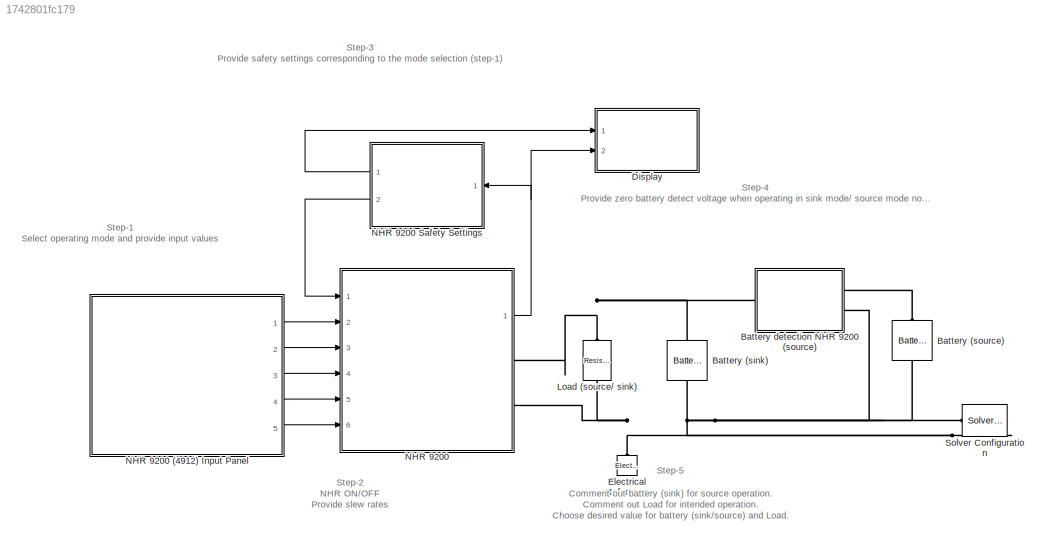
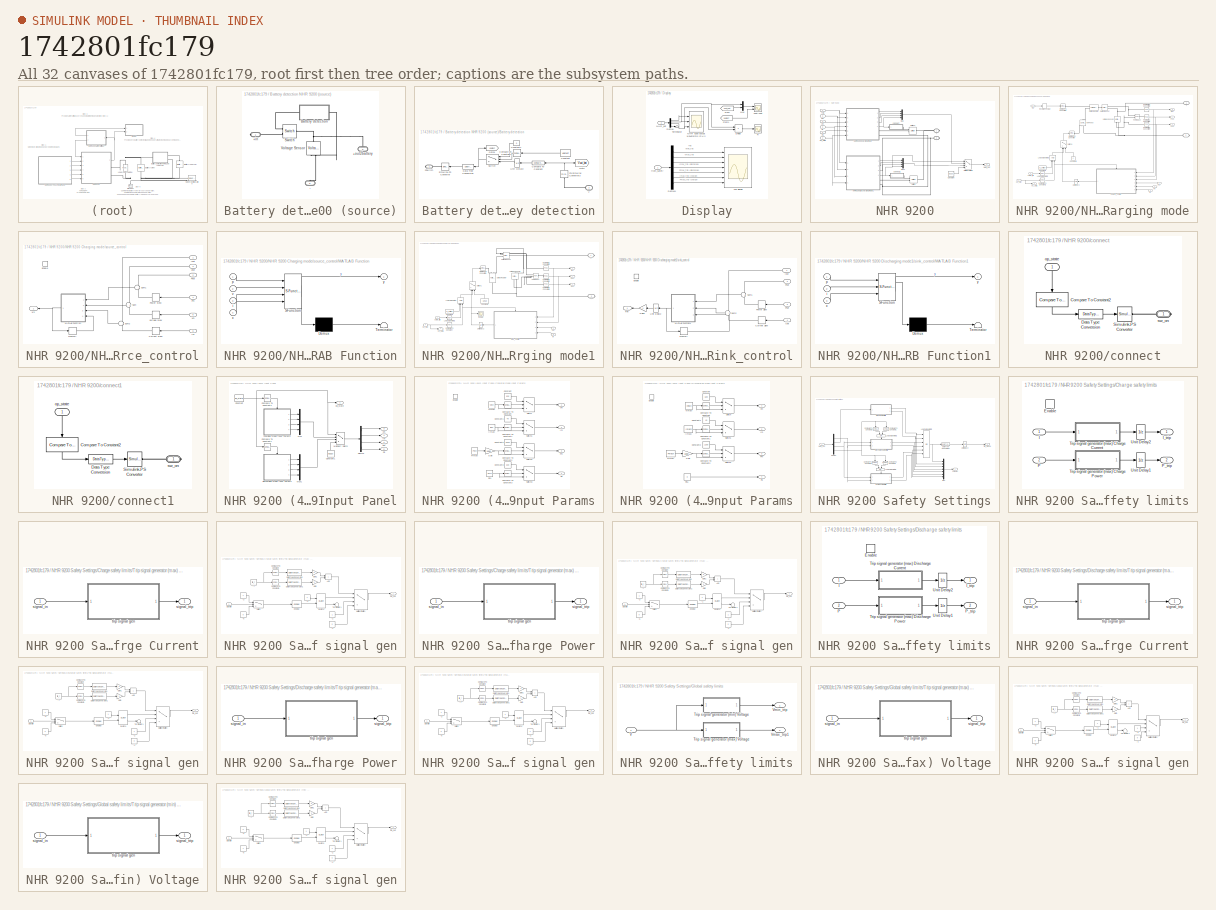
[diagram: thumbnail index - all 32 canvases of the model, root first then tree order]
MODEL slx_1742801fc179
KIND model
CONFIG AbsTol = auto
CONFIG EnableMultiTasking = off
CONFIG FixedStep = Ts
CONFIG InitFcn = Ts=1e-3;
CONFIG MaxStep = 0.2
CONFIG MinStep = auto
CONFIG PreLoadFcn = Ts=1e-3;
CONFIG RelTol = 1e-3
CONFIG SampleTimeConstraint = Unconstrained
CONFIG SolverName = ode4
CONFIG StartTime = 0.0
CONFIG StopTime = 2
BLOCK [Reference] Battery (sink)  REF=ee_lib/Sources/Battery
  Commented = on
  NameLocation = right
  Ports = [0, 0, 0, 0, 0, 1, 1]
  SourceBlock = ee_lib/Sources/Battery
  SourceProductBaseCode = PS
  SourceType = Battery
BLOCK [Reference] Battery (source)  REF=ee_lib/Sources/Battery
  NameLocation = right
  Ports = [0, 0, 0, 0, 0, 1, 1]
  SourceBlock = ee_lib/Sources/Battery
  SourceProductBaseCode = PS
  SourceType = Battery
BLOCK [SubSystem] Battery detection NHR 9200 (source)
  Ports = [0, 0, 0, 0, 0, 2, 1]
  RequestExecContextInheritance = off
BLOCK [PMIOPort] Battery detection NHR 9200 (source)/+in
  Side = Right
BLOCK [PMIOPort] Battery detection NHR 9200 (source)/+out2battery
  NameLocation = right
  Port = 2
  Side = Left
BLOCK [PMIOPort] Battery detection NHR 9200 (source)/-
  NameLocation = right
  Port = 3
  Side = Left
BLOCK [SubSystem] Battery detection NHR 9200 (source)/Battery detection
  Ports = [0, 0, 0, 0, 0, 1, 1]
  RequestExecContextInheritance = off
BLOCK [PMIOPort] Battery detection NHR 9200 (source)/Battery detection/2Switch
  Side = Right
BLOCK [Reference] Battery detection NHR 9200 (source)/Battery detection/Compare To Constant  REF=simulink/Logic and Bit
Operations/Compare
To Constant
  NameLocation = top
  Ports = [1, 1]
  SourceBlock = simulink/Logic and Bit\nOperations/Compare\nTo Constant
  SourceProductBaseCode = SL
  SourceType = Compare To Constant
BLOCK [Reference] Battery detection NHR 9200 (source)/Battery detection/Compare To Constant1  REF=simulink/Logic and Bit
Operations/Compare
To Constant
  NameLocation = top
  Ports = [1, 1]
  SourceBlock = simulink/Logic and Bit\nOperations/Compare\nTo Constant
  SourceProductBaseCode = SL
  SourceType = Compare To Constant
BLOCK [Constant] Battery detection NHR 9200 (source)/Battery detection/Constant
  Value = Vdetect
BLOCK [Constant] Battery detection NHR 9200 (source)/Battery detection/Constant1
  Value = 0
BLOCK [DataTypeConversion] Battery detection NHR 9200 (source)/Battery detection/Data Type Conversion
  NameLocation = top
  OutDataTypeStr = double
  RndMeth = Floor
  SaturateOnIntegerOverflow = off
BLOCK [Goto] Battery detection NHR 9200 (source)/Battery detection/Goto
  GotoTag = Vuut_bat
  TagVisibility = global
BLOCK [Goto] Battery detection NHR 9200 (source)/Battery detection/Goto1
  GotoTag = Vdetect
  TagVisibility = global
BLOCK [Reference] Battery detection NHR 9200 (source)/Battery detection/PS-Simulink Converter3  REF=nesl_utility/PS-Simulink
Converter
  NameLocation = left
  Ports = [0, 1, 0, 0, 0, 1]
  SourceBlock = nesl_utility/PS-Simulink\nConverter
  SourceProductBaseCode = SS
  SourceType = PS-Simulink\nConverter
BLOCK [Reference] Battery detection NHR 9200 (source)/Battery detection/Simulink-PS Converter  REF=nesl_utility/Simulink-PS
Converter
  NameLocation = top
  Ports = [1, 0, 0, 0, 0, 0, 1]
  SourceBlock = nesl_utility/Simulink-PS\nConverter
  SourceProductBaseCode = SS
  SourceType = Simulink-PS\nConverter
BLOCK [Switch] Battery detection NHR 9200 (source)/Battery detection/Switch
  Criteria = u2 > Threshold
  InputSameDT = off
  SaturateOnIntegerOverflow = off
BLOCK [UnitDelay] Battery detection NHR 9200 (source)/Battery detection/Unit Delay2
  HasFrameUpgradeWarning = on
  InitialCondition = 1
  NameLocation = top
  SampleTime = -1
BLOCK [PMIOPort] Battery detection NHR 9200 (source)/Battery detection/V
  Port = 2
  Side = Left
BLOCK [Reference] Battery detection NHR 9200 (source)/Switch  REF=fl_lib/Electrical/Electrical Elements/Switch
  Ports = [0, 0, 0, 0, 0, 1, 2]
  SourceBlock = fl_lib/Electrical/Electrical Elements/Switch
  SourceProductBaseCode = SS
  SourceType = Switch
BLOCK [Reference] Battery detection NHR 9200 (source)/Voltage Sensor  REF=fl_lib/Electrical/Electrical Sensors/Voltage Sensor
  NameLocation = right
  Ports = [0, 0, 0, 0, 0, 1, 2]
  SourceBlock = fl_lib/Electrical/Electrical Sensors/Voltage Sensor
  SourceProductBaseCode = SS
  SourceType = Voltage Sensor
BLOCK [SubSystem] Display
  Ports = [2]
  RequestExecContextInheritance = off
BLOCK [Demux] Display/Demux
  Ports = [1, 4]
BLOCK [Demux] Display/Demux1
  Outputs = 7
  Ports = [1, 7]
BLOCK [Product] Display/Divide
  Commented = on
  Inputs = */
  Ports = [2, 1]
BLOCK [From] Display/From
  GotoTag = Vuut_bat
  TagVisibility = global
BLOCK [From] Display/From1
  GotoTag = Vdetect
  TagVisibility = global
BLOCK [Mux] Display/Mux
  DisplayOption = bar
  Inputs = 2
  Ports = [2, 1]
BLOCK [Scope] Display/NHR 9200 output waveforms [P,V,I]
  Floating = off
  NumInputPorts = 3
  Ports = [3]
  ScopeSpecificationString = Simulink.scopes.TimeScopeBlockCfg('CurrentConfiguration', extmgr.ConfigurationSet(extmgr.Configuration('Core','General UI',true,'FigureColor',[1 1 1]),extmgr.Configuration('Core','Source UI',true),extmgr.Configuration('Sources','WiredSimulink',true),extmgr.Configuration('Visuals','Time Domain',true,'PlotType','Line','SerializedDisplays',{struct('MinYLimReal','-83.55957','MaxYLimReal','752.0361','Y...<+3464ch>
BLOCK [Inport] Display/NHR_out
  Port = 2
BLOCK [Scope] Display/R
  Commented = on
  Floating = off
  NumInputPorts = 1
  Ports = [1]
  ScopeSpecificationString = Simulink.scopes.TimeScopeBlockCfg('CurrentConfiguration', extmgr.ConfigurationSet(extmgr.Configuration('Core','General UI',true),extmgr.Configuration('Core','Source UI',true),extmgr.Configuration('Sources','WiredSimulink',true,'DataLoggingVariableName','ScopeData2'),extmgr.Configuration('Visuals','Time Domain',true,'SerializedDisplays',{struct('MinYLimReal','-1250000034.51391','MaxYLimReal','11250...<+1534ch>
BLOCK [Terminator] Display/Terminator
BLOCK [Scope] Display/Trip Signals
  Floating = off
  NumInputPorts = 7
  Ports = [7]
  ScopeSpecificationString = Simulink.scopes.TimeScopeBlockCfg('CurrentConfiguration', extmgr.ConfigurationSet(extmgr.Configuration('Core','General UI',true),extmgr.Configuration('Core','Source UI',true),extmgr.Configuration('Sources','WiredSimulink',true,'DataLoggingVariableName','ScopeData1'),extmgr.Configuration('Visuals','Time Domain',true,'SerializedDisplays',{struct('MinYLimReal','-1.00000','MaxYLimReal','1.00000','YLab...<+6266ch>
BLOCK [Scope] Display/Vout//Vuut
  Floating = off
  NumInputPorts = 2
  Ports = [2]
  ScopeSpecificationString = Simulink.scopes.TimeScopeBlockCfg('CurrentConfiguration', extmgr.ConfigurationSet(extmgr.Configuration('Core','General UI',true),extmgr.Configuration('Core','Source UI',true),extmgr.Configuration('Sources','WiredSimulink',true,'DataLoggingVariableName','ScopeData3'),extmgr.Configuration('Visuals','Time Domain',true,'SerializedDisplays',{struct('MinYLimReal','-32.91958','MaxYLimReal','297.77538','Y...<+2185ch>
BLOCK [Inport] Display/from_safety
BLOCK [Reference] Electrical Reference  REF=fl_lib/Electrical/Electrical Elements/Electrical Reference
  NameLocation = right
  Ports = [0, 0, 0, 0, 0, 1]
  SourceBlock = fl_lib/Electrical/Electrical Elements/Electrical Reference
  SourceProductBaseCode = SS
  SourceType = Electrical Reference
BLOCK [Reference] Load (source// sink)  REF=fl_lib/Electrical/Electrical Elements/Resistor
  NameLocation = right
  Ports = [0, 0, 0, 0, 0, 1, 1]
  SourceBlock = fl_lib/Electrical/Electrical Elements/Resistor
  SourceProductBaseCode = SS
  SourceType = Resistor
BLOCK [SubSystem] NHR 9200
  Ports = [6, 1, 0, 0, 0, 0, 2]
  RequestExecContextInheritance = off
BLOCK [SubSystem] NHR 9200 (4912) Input Panel
  Ports = [0, 5]
  RequestExecContextInheritance = off
BLOCK [SubSystem] NHR 9200 (4912) Input Panel/Charging mode Input Params
  Ports = [0, 4, 1]
  RequestExecContextInheritance = off
BLOCK [Reference] NHR 9200 (4912) Input Panel/Charging mode Input Params/Compare To Constant  REF=simulink/Logic and Bit
Operations/Compare
To Constant
  Ports = [1, 1]
  SourceBlock = simulink/Logic and Bit\nOperations/Compare\nTo Constant
  SourceProductBaseCode = SL
  SourceType = Compare To Constant
BLOCK [Reference] NHR 9200 (4912) Input Panel/Charging mode Input Params/Compare To Constant1  REF=simulink/Logic and Bit
Operations/Compare
To Constant
  Ports = [1, 1]
  SourceBlock = simulink/Logic and Bit\nOperations/Compare\nTo Constant
  SourceProductBaseCode = SL
  SourceType = Compare To Constant
BLOCK [Reference] NHR 9200 (4912) Input Panel/Charging mode Input Params/Compare To Constant2  REF=simulink/Logic and Bit
Operations/Compare
To Constant
  Ports = [1, 1]
  SourceBlock = simulink/Logic and Bit\nOperations/Compare\nTo Constant
  SourceProductBaseCode = SL
  SourceType = Compare To Constant
BLOCK [Reference] NHR 9200 (4912) Input Panel/Charging mode Input Params/Compare To Constant3  REF=simulink/Logic and Bit
Operations/Compare
To Constant
  Ports = [1, 1]
  SourceBlock = simulink/Logic and Bit\nOperations/Compare\nTo Constant
  SourceProductBaseCode = SL
  SourceType = Compare To Constant
BLOCK [Constant] NHR 9200 (4912) Input Panel/Charging mode Input Params/Constant
  Value = 600
BLOCK [Constant] NHR 9200 (4912) Input Panel/Charging mode Input Params/Constant1
  Value = 40
BLOCK [Constant] NHR 9200 (4912) Input Panel/Charging mode Input Params/Constant2
  Value = 8000
BLOCK [Constant] NHR 9200 (4912) Input Panel/Charging mode Input Params/Constant3
  Value = 500
BLOCK [EnablePort] NHR 9200 (4912) Input Panel/Charging mode Input Params/Enable
  Ports = []
BLOCK [Gain] NHR 9200 (4912) Input Panel/Charging mode Input Params/Gain
  Gain = 1000
BLOCK [Constant] NHR 9200 (4912) Input Panel/Charging mode Input Params/I(max)
  Value = Imch
BLOCK [Outport] NHR 9200 (4912) Input Panel/Charging mode Input Params/Im
  Port = 2
  VectorParamsAs1DForOutWhenUnconnected = off
BLOCK [Constant] NHR 9200 (4912) Input Panel/Charging mode Input Params/P(max)
  Value = Pmch
BLOCK [Outport] NHR 9200 (4912) Input Panel/Charging mode Input Params/Pm
  Port = 3
  VectorParamsAs1DForOutWhenUnconnected = off
BLOCK [Outport] NHR 9200 (4912) Input Panel/Charging mode Input Params/Rs
  Port = 4
  VectorParamsAs1DForOutWhenUnconnected = off
BLOCK [Constant] NHR 9200 (4912) Input Panel/Charging mode Input Params/Rs1
  Value = Rsch
BLOCK [Switch] NHR 9200 (4912) Input Panel/Charging mode Input Params/Switch
  Criteria = u2 > Threshold
  InputSameDT = off
  SaturateOnIntegerOverflow = off
BLOCK [Switch] NHR 9200 (4912) Input Panel/Charging mode Input Params/Switch1
  Criteria = u2 > Threshold
  InputSameDT = off
  SaturateOnIntegerOverflow = off
BLOCK [Switch] NHR 9200 (4912) Input Panel/Charging mode Input Params/Switch2
  Criteria = u2 > Threshold
  InputSameDT = off
  SaturateOnIntegerOverflow = off
BLOCK [Switch] NHR 9200 (4912) Input Panel/Charging mode Input Params/Switch3
  Criteria = u2 > Threshold
  InputSameDT = off
  SaturateOnIntegerOverflow = off
BLOCK [Constant] NHR 9200 (4912) Input Panel/Charging mode Input Params/V(max)
  Value = Vmch
BLOCK [Outport] NHR 9200 (4912) Input Panel/Charging mode Input Params/Vm
  VectorParamsAs1DForOutWhenUnconnected = off
BLOCK [Reference] NHR 9200 (4912) Input Panel/Compare To Constant1  REF=simulink/Logic and Bit
Operations/Compare
To Constant
  Ports = [1, 1]
  SourceBlock = simulink/Logic and Bit\nOperations/Compare\nTo Constant
  SourceProductBaseCode = SL
  SourceType = Compare To Constant
BLOCK [Reference] NHR 9200 (4912) Input Panel/Compare To Constant4  REF=simulink/Logic and Bit
Operations/Compare
To Constant
  Ports = [1, 1]
  SourceBlock = simulink/Logic and Bit\nOperations/Compare\nTo Constant
  SourceProductBaseCode = SL
  SourceType = Compare To Constant
BLOCK [Constant] NHR 9200 (4912) Input Panel/Constant
  Value = op_state
BLOCK [Constant] NHR 9200 (4912) Input Panel/Constant1
  NameLocation = right
  Value = [0,0,0,0]
BLOCK [Demux] NHR 9200 (4912) Input Panel/Demux
  Ports = [1, 4]
BLOCK [SubSystem] NHR 9200 (4912) Input Panel/Discharging mode Input Params
  Ports = [0, 4, 1]
  RequestExecContextInheritance = off
BLOCK [Reference] NHR 9200 (4912) Input Panel/Discharging mode Input Params/Compare To Constant  REF=simulink/Logic and Bit
Operations/Compare
To Constant
  Ports = [1, 1]
  SourceBlock = simulink/Logic and Bit\nOperations/Compare\nTo Constant
  SourceProductBaseCode = SL
  SourceType = Compare To Constant
BLOCK [Reference] NHR 9200 (4912) Input Panel/Discharging mode Input Params/Compare To Constant1  REF=simulink/Logic and Bit
Operations/Compare
To Constant
  Ports = [1, 1]
  SourceBlock = simulink/Logic and Bit\nOperations/Compare\nTo Constant
  SourceProductBaseCode = SL
  SourceType = Compare To Constant
BLOCK [Reference] NHR 9200 (4912) Input Panel/Discharging mode Input Params/Compare To Constant2  REF=simulink/Logic and Bit
Operations/Compare
To Constant
  Ports = [1, 1]
  SourceBlock = simulink/Logic and Bit\nOperations/Compare\nTo Constant
  SourceProductBaseCode = SL
  SourceType = Compare To Constant
BLOCK [Constant] NHR 9200 (4912) Input Panel/Discharging mode Input Params/Constant
  Value = 600
BLOCK [Constant] NHR 9200 (4912) Input Panel/Discharging mode Input Params/Constant1
  Value = 40
BLOCK [Constant] NHR 9200 (4912) Input Panel/Discharging mode Input Params/Constant2
  Value = 1200
BLOCK [EnablePort] NHR 9200 (4912) Input Panel/Discharging mode Input Params/Enable
  Ports = []
BLOCK [Gain] NHR 9200 (4912) Input Panel/Discharging mode Input Params/Gain
  Gain = 1000
BLOCK [Constant] NHR 9200 (4912) Input Panel/Discharging mode Input Params/I(max)
  Value = Imdch
BLOCK [Outport] NHR 9200 (4912) Input Panel/Discharging mode Input Params/Im
  Port = 2
  VectorParamsAs1DForOutWhenUnconnected = off
BLOCK [Constant] NHR 9200 (4912) Input Panel/Discharging mode Input Params/P(max)
  Value = Pmdch
BLOCK [Outport] NHR 9200 (4912) Input Panel/Discharging mode Input Params/Pm
  Port = 3
  VectorParamsAs1DForOutWhenUnconnected = off
BLOCK [Outport] NHR 9200 (4912) Input Panel/Discharging mode Input Params/Rs
  Port = 4
  VectorParamsAs1DForOutWhenUnconnected = off
BLOCK [Constant] NHR 9200 (4912) Input Panel/Discharging mode Input Params/Rs1
  Value = 0
BLOCK [Switch] NHR 9200 (4912) Input Panel/Discharging mode Input Params/Switch
  Criteria = u2 > Threshold
  InputSameDT = off
  SaturateOnIntegerOverflow = off
BLOCK [Switch] NHR 9200 (4912) Input Panel/Discharging mode Input Params/Switch1
  Criteria = u2 > Threshold
  InputSameDT = off
  SaturateOnIntegerOverflow = off
BLOCK [Switch] NHR 9200 (4912) Input Panel/Discharging mode Input Params/Switch2
  Criteria = u2 > Threshold
  InputSameDT = off
  SaturateOnIntegerOverflow = off
BLOCK [Constant] NHR 9200 (4912) Input Panel/Discharging mode Input Params/V(max)
  Value = Vmdch
BLOCK [Outport] NHR 9200 (4912) Input Panel/Discharging mode Input Params/Vm
  VectorParamsAs1DForOutWhenUnconnected = off
BLOCK [Outport] NHR 9200 (4912) Input Panel/Im
  Port = 4
  VectorParamsAs1DForOutWhenUnconnected = off
BLOCK [MultiPortSwitch] NHR 9200 (4912) Input Panel/Multiport Switch
  DataPortForDefault = Additional data port
  DataPortIndices = {2,3}
  DataPortOrder = Specify indices
  DiagnosticForDefault = None
  InputSameDT = off
  Inputs = 2
  Ports = [4, 1]
  SaturateOnIntegerOverflow = off
BLOCK [Mux] NHR 9200 (4912) Input Panel/Mux
  DisplayOption = bar
  Ports = [4, 1]
BLOCK [Mux] NHR 9200 (4912) Input Panel/Mux1
  DisplayOption = bar
  Ports = [4, 1]
BLOCK [Outport] NHR 9200 (4912) Input Panel/Pm
  Port = 2
  VectorParamsAs1DForOutWhenUnconnected = off
BLOCK [Outport] NHR 9200 (4912) Input Panel/Rs
  Port = 5
  VectorParamsAs1DForOutWhenUnconnected = off
BLOCK [Outport] NHR 9200 (4912) Input Panel/Vm
  Port = 3
  VectorParamsAs1DForOutWhenUnconnected = off
BLOCK [Outport] NHR 9200 (4912) Input Panel/op_state
  VectorParamsAs1DForOutWhenUnconnected = off
BLOCK [SubSystem] NHR 9200 Safety Settings
  Ports = [1, 2]
  RequestExecContextInheritance = off
BLOCK [Outport] NHR 9200 Safety Settings/2Display
  VectorParamsAs1DForOutWhenUnconnected = off
BLOCK [SubSystem] NHR 9200 Safety Settings/Charge safety limits
  MinAlgLoopOccurrences = on
  Ports = [2, 2, 1]
  RequestExecContextInheritance = off
BLOCK [EnablePort] NHR 9200 Safety Settings/Charge safety limits/Enable
  Ports = []
BLOCK [Inport] NHR 9200 Safety Settings/Charge safety limits/I
BLOCK [Outport] NHR 9200 Safety Settings/Charge safety limits/I_trip
  VectorParamsAs1DForOutWhenUnconnected = off
BLOCK [Inport] NHR 9200 Safety Settings/Charge safety limits/P
  Port = 2
BLOCK [Outport] NHR 9200 Safety Settings/Charge safety limits/P_trip
  Port = 2
  VectorParamsAs1DForOutWhenUnconnected = off
BLOCK [SubSystem] NHR 9200 Safety Settings/Charge safety limits/Trip signal generator (max) Charge Current
  Ports = [1, 1]
  RequestExecContextInheritance = off
BLOCK [Inport] NHR 9200 Safety Settings/Charge safety limits/Trip signal generator (max) Charge Current/signal_in
BLOCK [Outport] NHR 9200 Safety Settings/Charge safety limits/Trip signal generator (max) Charge Current/signal_trip
  VectorParamsAs1DForOutWhenUnconnected = off
BLOCK [SubSystem] NHR 9200 Safety Settings/Charge safety limits/Trip signal generator (max) Charge Current/trip signal gen
  Ports = [1, 1]
  RequestExecContextInheritance = off
BLOCK [Constant] NHR 9200 Safety Settings/Charge safety limits/Trip signal generator (max) Charge Current/trip signal gen/-1
  OutDataTypeStr = boolean
BLOCK [Constant] NHR 9200 Safety Settings/Charge safety limits/Trip signal generator (max) Charge Current/trip signal gen/-2
  OutDataTypeStr = boolean
BLOCK [Constant] NHR 9200 Safety Settings/Charge safety limits/Trip signal generator (max) Charge Current/trip signal gen/-3
  OutDataTypeStr = boolean
BLOCK [Constant] NHR 9200 Safety Settings/Charge safety limits/Trip signal generator (max) Charge Current/trip signal gen/-4
  OutDataTypeStr = boolean
  Value = 0
BLOCK [Constant] NHR 9200 Safety Settings/Charge safety limits/Trip signal generator (max) Charge Current/trip signal gen/-5
  OutDataTypeStr = boolean
  Value = 0
BLOCK [Constant] NHR 9200 Safety Settings/Charge safety limits/Trip signal generator (max) Charge Current/trip signal gen/-7
  OutDataTypeStr = boolean
  Value = trip_t
BLOCK [Sum] NHR 9200 Safety Settings/Charge safety limits/Trip signal generator (max) Charge Current/trip signal gen/Add
  IconShape = rectangular
  Ports = [2, 1]
BLOCK [Reference] NHR 9200 Safety Settings/Charge safety limits/Trip signal generator (max) Charge Current/trip signal gen/Compare To Constant  REF=simulink/Logic and Bit
Operations/Compare
To Constant
  Ports = [1, 1]
  SourceBlock = simulink/Logic and Bit\nOperations/Compare\nTo Constant
  SourceProductBaseCode = SL
  SourceType = Compare To Constant
BLOCK [Reference] NHR 9200 Safety Settings/Charge safety limits/Trip signal generator (max) Charge Current/trip signal gen/Compare To Constant1  REF=simulink/Logic and Bit
Operations/Compare
To Constant
  Ports = [1, 1]
  SourceBlock = simulink/Logic and Bit\nOperations/Compare\nTo Constant
  SourceProductBaseCode = SL
  SourceType = Compare To Constant
BLOCK [Reference] NHR 9200 Safety Settings/Charge safety limits/Trip signal generator (max) Charge Current/trip signal gen/D Latch1  REF=simulink_extras/Flip Flops/D Latch
  Ports = [2, 2]
  SourceBlock = simulink_extras/Flip Flops/D Latch
  SourceProductBaseCode = SL
  SourceType = DLatch
BLOCK [DataTypeConversion] NHR 9200 Safety Settings/Charge safety limits/Trip signal generator (max) Charge Current/trip signal gen/Data Type Conversion
  OutDataTypeStr = double
  RndMeth = Floor
  SaturateOnIntegerOverflow = off
BLOCK [DataTypeConversion] NHR 9200 Safety Settings/Charge safety limits/Trip signal generator (max) Charge Current/trip signal gen/Data Type Conversion1
  OutDataTypeStr = double
  RndMeth = Floor
  SaturateOnIntegerOverflow = off
BLOCK [Gain] NHR 9200 Safety Settings/Charge safety limits/Trip signal generator (max) Charge Current/trip signal gen/Gain
  Gain = 2
BLOCK [Gain] NHR 9200 Safety Settings/Charge safety limits/Trip signal generator (max) Charge Current/trip signal gen/Gain1
BLOCK [MultiPortSwitch] NHR 9200 Safety Settings/Charge safety limits/Trip signal generator (max) Charge Current/trip signal gen/Multiport Switch
  DataPortForDefault = Additional data port
  InputSameDT = off
  Inputs = 2
  Ports = [4, 1]
  SaturateOnIntegerOverflow = off
BLOCK [Reference] NHR 9200 Safety Settings/Charge safety limits/Trip signal generator (max) Charge Current/trip signal gen/On Delay  REF=powerlib_meascontrol/Logic/On Delay
  Ports = [1, 1]
  SourceBlock = powerlib_meascontrol/Logic/On Delay
  SourceProductBaseCode = PS
  SourceType = On/Off Delay
BLOCK [Switch] NHR 9200 Safety Settings/Charge safety limits/Trip signal generator (max) Charge Current/trip signal gen/Switch
  Criteria = u2 > Threshold
  InputSameDT = off
  SaturateOnIntegerOverflow = off
  Threshold = trip_thres
BLOCK [Terminator] NHR 9200 Safety Settings/Charge safety limits/Trip signal generator (max) Charge Current/trip signal gen/Terminator1
BLOCK [Inport] NHR 9200 Safety Settings/Charge safety limits/Trip signal generator (max) Charge Current/trip signal gen/signal in
BLOCK [Outport] NHR 9200 Safety Settings/Charge safety limits/Trip signal generator (max) Charge Current/trip signal gen/trip_out
  VectorParamsAs1DForOutWhenUnconnected = off
BLOCK [SubSystem] NHR 9200 Safety Settings/Charge safety limits/Trip signal generator (max) Charge Power
  Ports = [1, 1]
  RequestExecContextInheritance = off
BLOCK [Inport] NHR 9200 Safety Settings/Charge safety limits/Trip signal generator (max) Charge Power/signal_in
BLOCK [Outport] NHR 9200 Safety Settings/Charge safety limits/Trip signal generator (max) Charge Power/signal_trip
  VectorParamsAs1DForOutWhenUnconnected = off
BLOCK [SubSystem] NHR 9200 Safety Settings/Charge safety limits/Trip signal generator (max) Charge Power/trip signal gen
  Ports = [1, 1]
  RequestExecContextInheritance = off
BLOCK [Constant] NHR 9200 Safety Settings/Charge safety limits/Trip signal generator (max) Charge Power/trip signal gen/-1
  OutDataTypeStr = boolean
BLOCK [Constant] NHR 9200 Safety Settings/Charge safety limits/Trip signal generator (max) Charge Power/trip signal gen/-2
  OutDataTypeStr = boolean
BLOCK [Constant] NHR 9200 Safety Settings/Charge safety limits/Trip signal generator (max) Charge Power/trip signal gen/-3
  OutDataTypeStr = boolean
BLOCK [Constant] NHR 9200 Safety Settings/Charge safety limits/Trip signal generator (max) Charge Power/trip signal gen/-4
  OutDataTypeStr = boolean
  Value = 0
BLOCK [Constant] NHR 9200 Safety Settings/Charge safety limits/Trip signal generator (max) Charge Power/trip signal gen/-5
  OutDataTypeStr = boolean
  Value = 0
BLOCK [Constant] NHR 9200 Safety Settings/Charge safety limits/Trip signal generator (max) Charge Power/trip signal gen/-7
  OutDataTypeStr = boolean
  Value = trip_t
BLOCK [Sum] NHR 9200 Safety Settings/Charge safety limits/Trip signal generator (max) Charge Power/trip signal gen/Add
  IconShape = rectangular
  Ports = [2, 1]
BLOCK [Reference] NHR 9200 Safety Settings/Charge safety limits/Trip signal generator (max) Charge Power/trip signal gen/Compare To Constant  REF=simulink/Logic and Bit
Operations/Compare
To Constant
  Ports = [1, 1]
  SourceBlock = simulink/Logic and Bit\nOperations/Compare\nTo Constant
  SourceProductBaseCode = SL
  SourceType = Compare To Constant
BLOCK [Reference] NHR 9200 Safety Settings/Charge safety limits/Trip signal generator (max) Charge Power/trip signal gen/Compare To Constant1  REF=simulink/Logic and Bit
Operations/Compare
To Constant
  Ports = [1, 1]
  SourceBlock = simulink/Logic and Bit\nOperations/Compare\nTo Constant
  SourceProductBaseCode = SL
  SourceType = Compare To Constant
BLOCK [Reference] NHR 9200 Safety Settings/Charge safety limits/Trip signal generator (max) Charge Power/trip signal gen/D Latch1  REF=simulink_extras/Flip Flops/D Latch
  Ports = [2, 2]
  SourceBlock = simulink_extras/Flip Flops/D Latch
  SourceProductBaseCode = SL
  SourceType = DLatch
BLOCK [DataTypeConversion] NHR 9200 Safety Settings/Charge safety limits/Trip signal generator (max) Charge Power/trip signal gen/Data Type Conversion
  OutDataTypeStr = double
  RndMeth = Floor
  SaturateOnIntegerOverflow = off
BLOCK [DataTypeConversion] NHR 9200 Safety Settings/Charge safety limits/Trip signal generator (max) Charge Power/trip signal gen/Data Type Conversion1
  OutDataTypeStr = double
  RndMeth = Floor
  SaturateOnIntegerOverflow = off
BLOCK [Gain] NHR 9200 Safety Settings/Charge safety limits/Trip signal generator (max) Charge Power/trip signal gen/Gain
  Gain = 2
BLOCK [Gain] NHR 9200 Safety Settings/Charge safety limits/Trip signal generator (max) Charge Power/trip signal gen/Gain1
BLOCK [MultiPortSwitch] NHR 9200 Safety Settings/Charge safety limits/Trip signal generator (max) Charge Power/trip signal gen/Multiport Switch
  DataPortForDefault = Additional data port
  InputSameDT = off
  Inputs = 2
  Ports = [4, 1]
  SaturateOnIntegerOverflow = off
BLOCK [Reference] NHR 9200 Safety Settings/Charge safety limits/Trip signal generator (max) Charge Power/trip signal gen/On Delay  REF=powerlib_meascontrol/Logic/On Delay
  Ports = [1, 1]
  SourceBlock = powerlib_meascontrol/Logic/On Delay
  SourceProductBaseCode = PS
  SourceType = On/Off Delay
BLOCK [Switch] NHR 9200 Safety Settings/Charge safety limits/Trip signal generator (max) Charge Power/trip signal gen/Switch
  Criteria = u2 > Threshold
  InputSameDT = off
  SaturateOnIntegerOverflow = off
  Threshold = trip_thres
BLOCK [Terminator] NHR 9200 Safety Settings/Charge safety limits/Trip signal generator (max) Charge Power/trip signal gen/Terminator1
BLOCK [Inport] NHR 9200 Safety Settings/Charge safety limits/Trip signal generator (max) Charge Power/trip signal gen/signal in
BLOCK [Outport] NHR 9200 Safety Settings/Charge safety limits/Trip signal generator (max) Charge Power/trip signal gen/trip_out
  VectorParamsAs1DForOutWhenUnconnected = off
BLOCK [UnitDelay] NHR 9200 Safety Settings/Charge safety limits/Unit Delay1
  HasFrameUpgradeWarning = on
  InitialCondition = 1
  SampleTime = -1
BLOCK [UnitDelay] NHR 9200 Safety Settings/Charge safety limits/Unit Delay2
  HasFrameUpgradeWarning = on
  InitialCondition = 1
  SampleTime = -1
BLOCK [Reference] NHR 9200 Safety Settings/Compare To Constant1  REF=simulink/Logic and Bit
Operations/Compare
To Constant
  NameLocation = left
  Ports = [1, 1]
  SourceBlock = simulink/Logic and Bit\nOperations/Compare\nTo Constant
  SourceProductBaseCode = SL
  SourceType = Compare To Constant
BLOCK [Reference] NHR 9200 Safety Settings/Compare To Constant2  REF=simulink/Logic and Bit
Operations/Compare
To Constant
  NameLocation = left
  Ports = [1, 1]
  SourceBlock = simulink/Logic and Bit\nOperations/Compare\nTo Constant
  SourceProductBaseCode = SL
  SourceType = Compare To Constant
BLOCK [Reference] NHR 9200 Safety Settings/Compare To Constant3  REF=simulink/Logic and Bit
Operations/Compare
To Constant
  NameLocation = left
  Ports = [1, 1]
  SourceBlock = simulink/Logic and Bit\nOperations/Compare\nTo Constant
  SourceProductBaseCode = SL
  SourceType = Compare To Constant
BLOCK [Reference] NHR 9200 Safety Settings/Compare To Constant4  REF=simulink/Logic and Bit
Operations/Compare
To Constant
  NameLocation = left
  Ports = [1, 1]
  SourceBlock = simulink/Logic and Bit\nOperations/Compare\nTo Constant
  SourceProductBaseCode = SL
  SourceType = Compare To Constant
BLOCK [DataTypeConversion] NHR 9200 Safety Settings/Data Type Conversion
  OutDataTypeStr = double
  RndMeth = Floor
  SaturateOnIntegerOverflow = off
BLOCK [Demux] NHR 9200 Safety Settings/Demux
  Ports = [1, 4]
BLOCK [SubSystem] NHR 9200 Safety Settings/Discharge safety limits
  MinAlgLoopOccurrences = on
  Ports = [2, 2, 1]
  RequestExecContextInheritance = off
BLOCK [EnablePort] NHR 9200 Safety Settings/Discharge safety limits/Enable
  Ports = []
BLOCK [Inport] NHR 9200 Safety Settings/Discharge safety limits/I
BLOCK [Outport] NHR 9200 Safety Settings/Discharge safety limits/I_trip
  VectorParamsAs1DForOutWhenUnconnected = off
BLOCK [Inport] NHR 9200 Safety Settings/Discharge safety limits/P
  Port = 2
BLOCK [Outport] NHR 9200 Safety Settings/Discharge safety limits/P_trip
  Port = 2
  VectorParamsAs1DForOutWhenUnconnected = off
BLOCK [SubSystem] NHR 9200 Safety Settings/Discharge safety limits/Trip signal generator (max) Discharge Current
  Ports = [1, 1]
  RequestExecContextInheritance = off
BLOCK [Inport] NHR 9200 Safety Settings/Discharge safety limits/Trip signal generator (max) Discharge Current/signal_in
BLOCK [Outport] NHR 9200 Safety Settings/Discharge safety limits/Trip signal generator (max) Discharge Current/signal_trip
  VectorParamsAs1DForOutWhenUnconnected = off
BLOCK [SubSystem] NHR 9200 Safety Settings/Discharge safety limits/Trip signal generator (max) Discharge Current/trip signal gen
  Ports = [1, 1]
  RequestExecContextInheritance = off
BLOCK [Constant] NHR 9200 Safety Settings/Discharge safety limits/Trip signal generator (max) Discharge Current/trip signal gen/-1
  OutDataTypeStr = boolean
BLOCK [Constant] NHR 9200 Safety Settings/Discharge safety limits/Trip signal generator (max) Discharge Current/trip signal gen/-2
  OutDataTypeStr = boolean
BLOCK [Constant] NHR 9200 Safety Settings/Discharge safety limits/Trip signal generator (max) Discharge Current/trip signal gen/-3
  OutDataTypeStr = boolean
BLOCK [Constant] NHR 9200 Safety Settings/Discharge safety limits/Trip signal generator (max) Discharge Current/trip signal gen/-4
  OutDataTypeStr = boolean
  Value = 0
BLOCK [Constant] NHR 9200 Safety Settings/Discharge safety limits/Trip signal generator (max) Discharge Current/trip signal gen/-5
  OutDataTypeStr = boolean
  Value = 0
BLOCK [Constant] NHR 9200 Safety Settings/Discharge safety limits/Trip signal generator (max) Discharge Current/trip signal gen/-7
  OutDataTypeStr = boolean
  Value = trip_t
BLOCK [Sum] NHR 9200 Safety Settings/Discharge safety limits/Trip signal generator (max) Discharge Current/trip signal gen/Add
  IconShape = rectangular
  Ports = [2, 1]
BLOCK [Reference] NHR 9200 Safety Settings/Discharge safety limits/Trip signal generator (max) Discharge Current/trip signal gen/Compare To Constant  REF=simulink/Logic and Bit
Operations/Compare
To Constant
  Ports = [1, 1]
  SourceBlock = simulink/Logic and Bit\nOperations/Compare\nTo Constant
  SourceProductBaseCode = SL
  SourceType = Compare To Constant
BLOCK [Reference] NHR 9200 Safety Settings/Discharge safety limits/Trip signal generator (max) Discharge Current/trip signal gen/Compare To Constant1  REF=simulink/Logic and Bit
Operations/Compare
To Constant
  Ports = [1, 1]
  SourceBlock = simulink/Logic and Bit\nOperations/Compare\nTo Constant
  SourceProductBaseCode = SL
  SourceType = Compare To Constant
BLOCK [Reference] NHR 9200 Safety Settings/Discharge safety limits/Trip signal generator (max) Discharge Current/trip signal gen/D Latch1  REF=simulink_extras/Flip Flops/D Latch
  Ports = [2, 2]
  SourceBlock = simulink_extras/Flip Flops/D Latch
  SourceProductBaseCode = SL
  SourceType = DLatch
BLOCK [DataTypeConversion] NHR 9200 Safety Settings/Discharge safety limits/Trip signal generator (max) Discharge Current/trip signal gen/Data Type Conversion
  OutDataTypeStr = double
  RndMeth = Floor
  SaturateOnIntegerOverflow = off
BLOCK [DataTypeConversion] NHR 9200 Safety Settings/Discharge safety limits/Trip signal generator (max) Discharge Current/trip signal gen/Data Type Conversion1
  OutDataTypeStr = double
  RndMeth = Floor
  SaturateOnIntegerOverflow = off
BLOCK [Gain] NHR 9200 Safety Settings/Discharge safety limits/Trip signal generator (max) Discharge Current/trip signal gen/Gain
  Gain = 2
BLOCK [Gain] NHR 9200 Safety Settings/Discharge safety limits/Trip signal generator (max) Discharge Current/trip signal gen/Gain1
BLOCK [MultiPortSwitch] NHR 9200 Safety Settings/Discharge safety limits/Trip signal generator (max) Discharge Current/trip signal gen/Multiport Switch
  DataPortForDefault = Additional data port
  InputSameDT = off
  Inputs = 2
  Ports = [4, 1]
  SaturateOnIntegerOverflow = off
BLOCK [Reference] NHR 9200 Safety Settings/Discharge safety limits/Trip signal generator (max) Discharge Current/trip signal gen/On Delay  REF=powerlib_meascontrol/Logic/On Delay
  Ports = [1, 1]
  SourceBlock = powerlib_meascontrol/Logic/On Delay
  SourceProductBaseCode = PS
  SourceType = On/Off Delay
BLOCK [Switch] NHR 9200 Safety Settings/Discharge safety limits/Trip signal generator (max) Discharge Current/trip signal gen/Switch
  Criteria = u2 > Threshold
  InputSameDT = off
  SaturateOnIntegerOverflow = off
  Threshold = trip_thres
BLOCK [Terminator] NHR 9200 Safety Settings/Discharge safety limits/Trip signal generator (max) Discharge Current/trip signal gen/Terminator1
BLOCK [Inport] NHR 9200 Safety Settings/Discharge safety limits/Trip signal generator (max) Discharge Current/trip signal gen/signal in
BLOCK [Outport] NHR 9200 Safety Settings/Discharge safety limits/Trip signal generator (max) Discharge Current/trip signal gen/trip_out
  VectorParamsAs1DForOutWhenUnconnected = off
BLOCK [SubSystem] NHR 9200 Safety Settings/Discharge safety limits/Trip signal generator (max) Discharge Power
  Ports = [1, 1]
  RequestExecContextInheritance = off
BLOCK [Inport] NHR 9200 Safety Settings/Discharge safety limits/Trip signal generator (max) Discharge Power/signal_in
BLOCK [Outport] NHR 9200 Safety Settings/Discharge safety limits/Trip signal generator (max) Discharge Power/signal_trip
  VectorParamsAs1DForOutWhenUnconnected = off
BLOCK [SubSystem] NHR 9200 Safety Settings/Discharge safety limits/Trip signal generator (max) Discharge Power/trip signal gen
  Ports = [1, 1]
  RequestExecContextInheritance = off
BLOCK [Constant] NHR 9200 Safety Settings/Discharge safety limits/Trip signal generator (max) Discharge Power/trip signal gen/-1
  OutDataTypeStr = boolean
BLOCK [Constant] NHR 9200 Safety Settings/Discharge safety limits/Trip signal generator (max) Discharge Power/trip signal gen/-2
  OutDataTypeStr = boolean
BLOCK [Constant] NHR 9200 Safety Settings/Discharge safety limits/Trip signal generator (max) Discharge Power/trip signal gen/-3
  OutDataTypeStr = boolean
BLOCK [Constant] NHR 9200 Safety Settings/Discharge safety limits/Trip signal generator (max) Discharge Power/trip signal gen/-4
  OutDataTypeStr = boolean
  Value = 0
BLOCK [Constant] NHR 9200 Safety Settings/Discharge safety limits/Trip signal generator (max) Discharge Power/trip signal gen/-5
  OutDataTypeStr = boolean
  Value = 0
BLOCK [Constant] NHR 9200 Safety Settings/Discharge safety limits/Trip signal generator (max) Discharge Power/trip signal gen/-7
  OutDataTypeStr = boolean
  Value = trip_t
BLOCK [Sum] NHR 9200 Safety Settings/Discharge safety limits/Trip signal generator (max) Discharge Power/trip signal gen/Add
  IconShape = rectangular
  Ports = [2, 1]
BLOCK [Reference] NHR 9200 Safety Settings/Discharge safety limits/Trip signal generator (max) Discharge Power/trip signal gen/Compare To Constant  REF=simulink/Logic and Bit
Operations/Compare
To Constant
  Ports = [1, 1]
  SourceBlock = simulink/Logic and Bit\nOperations/Compare\nTo Constant
  SourceProductBaseCode = SL
  SourceType = Compare To Constant
BLOCK [Reference] NHR 9200 Safety Settings/Discharge safety limits/Trip signal generator (max) Discharge Power/trip signal gen/Compare To Constant1  REF=simulink/Logic and Bit
Operations/Compare
To Constant
  Ports = [1, 1]
  SourceBlock = simulink/Logic and Bit\nOperations/Compare\nTo Constant
  SourceProductBaseCode = SL
  SourceType = Compare To Constant
BLOCK [Reference] NHR 9200 Safety Settings/Discharge safety limits/Trip signal generator (max) Discharge Power/trip signal gen/D Latch1  REF=simulink_extras/Flip Flops/D Latch
  Ports = [2, 2]
  SourceBlock = simulink_extras/Flip Flops/D Latch
  SourceProductBaseCode = SL
  SourceType = DLatch
BLOCK [DataTypeConversion] NHR 9200 Safety Settings/Discharge safety limits/Trip signal generator (max) Discharge Power/trip signal gen/Data Type Conversion
  OutDataTypeStr = double
  RndMeth = Floor
  SaturateOnIntegerOverflow = off
BLOCK [DataTypeConversion] NHR 9200 Safety Settings/Discharge safety limits/Trip signal generator (max) Discharge Power/trip signal gen/Data Type Conversion1
  OutDataTypeStr = double
  RndMeth = Floor
  SaturateOnIntegerOverflow = off
BLOCK [Gain] NHR 9200 Safety Settings/Discharge safety limits/Trip signal generator (max) Discharge Power/trip signal gen/Gain
  Gain = 2
BLOCK [Gain] NHR 9200 Safety Settings/Discharge safety limits/Trip signal generator (max) Discharge Power/trip signal gen/Gain1
BLOCK [MultiPortSwitch] NHR 9200 Safety Settings/Discharge safety limits/Trip signal generator (max) Discharge Power/trip signal gen/Multiport Switch
  DataPortForDefault = Additional data port
  InputSameDT = off
  Inputs = 2
  Ports = [4, 1]
  SaturateOnIntegerOverflow = off
BLOCK [Reference] NHR 9200 Safety Settings/Discharge safety limits/Trip signal generator (max) Discharge Power/trip signal gen/On Delay  REF=powerlib_meascontrol/Logic/On Delay
  Ports = [1, 1]
  SourceBlock = powerlib_meascontrol/Logic/On Delay
  SourceProductBaseCode = PS
  SourceType = On/Off Delay
BLOCK [Switch] NHR 9200 Safety Settings/Discharge safety limits/Trip signal generator (max) Discharge Power/trip signal gen/Switch
  Criteria = u2 > Threshold
  InputSameDT = off
  SaturateOnIntegerOverflow = off
  Threshold = trip_thres
BLOCK [Terminator] NHR 9200 Safety Settings/Discharge safety limits/Trip signal generator (max) Discharge Power/trip signal gen/Terminator1
BLOCK [Inport] NHR 9200 Safety Settings/Discharge safety limits/Trip signal generator (max) Discharge Power/trip signal gen/signal in
BLOCK [Outport] NHR 9200 Safety Settings/Discharge safety limits/Trip signal generator (max) Discharge Power/trip signal gen/trip_out
  VectorParamsAs1DForOutWhenUnconnected = off
BLOCK [UnitDelay] NHR 9200 Safety Settings/Discharge safety limits/Unit Delay1
  HasFrameUpgradeWarning = on
  InitialCondition = 1
  SampleTime = -1
BLOCK [UnitDelay] NHR 9200 Safety Settings/Discharge safety limits/Unit Delay2
  HasFrameUpgradeWarning = on
  InitialCondition = 1
  SampleTime = -1
BLOCK [SubSystem] NHR 9200 Safety Settings/Global safety limits
  Ports = [1, 2]
  RequestExecContextInheritance = off
BLOCK [SubSystem] NHR 9200 Safety Settings/Global safety limits/Trip signal generator (max) Voltage
  Ports = [1, 1]
  RequestExecContextInheritance = off
BLOCK [Inport] NHR 9200 Safety Settings/Global safety limits/Trip signal generator (max) Voltage/signal_in
BLOCK [Outport] NHR 9200 Safety Settings/Global safety limits/Trip signal generator (max) Voltage/signal_trip
  VectorParamsAs1DForOutWhenUnconnected = off
BLOCK [SubSystem] NHR 9200 Safety Settings/Global safety limits/Trip signal generator (max) Voltage/trip signal gen
  Ports = [1, 1]
  RequestExecContextInheritance = off
BLOCK [Constant] NHR 9200 Safety Settings/Global safety limits/Trip signal generator (max) Voltage/trip signal gen/-1
  OutDataTypeStr = boolean
BLOCK [Constant] NHR 9200 Safety Settings/Global safety limits/Trip signal generator (max) Voltage/trip signal gen/-2
  OutDataTypeStr = boolean
BLOCK [Constant] NHR 9200 Safety Settings/Global safety limits/Trip signal generator (max) Voltage/trip signal gen/-3
  OutDataTypeStr = boolean
BLOCK [Constant] NHR 9200 Safety Settings/Global safety limits/Trip signal generator (max) Voltage/trip signal gen/-4
  OutDataTypeStr = boolean
  Value = 0
BLOCK [Constant] NHR 9200 Safety Settings/Global safety limits/Trip signal generator (max) Voltage/trip signal gen/-5
  OutDataTypeStr = boolean
  Value = 0
BLOCK [Constant] NHR 9200 Safety Settings/Global safety limits/Trip signal generator (max) Voltage/trip signal gen/-7
  OutDataTypeStr = boolean
  Value = trip_t
BLOCK [Sum] NHR 9200 Safety Settings/Global safety limits/Trip signal generator (max) Voltage/trip signal gen/Add
  IconShape = rectangular
  Ports = [2, 1]
BLOCK [Reference] NHR 9200 Safety Settings/Global safety limits/Trip signal generator (max) Voltage/trip signal gen/Compare To Constant  REF=simulink/Logic and Bit
Operations/Compare
To Constant
  Ports = [1, 1]
  SourceBlock = simulink/Logic and Bit\nOperations/Compare\nTo Constant
  SourceProductBaseCode = SL
  SourceType = Compare To Constant
BLOCK [Reference] NHR 9200 Safety Settings/Global safety limits/Trip signal generator (max) Voltage/trip signal gen/Compare To Constant1  REF=simulink/Logic and Bit
Operations/Compare
To Constant
  Ports = [1, 1]
  SourceBlock = simulink/Logic and Bit\nOperations/Compare\nTo Constant
  SourceProductBaseCode = SL
  SourceType = Compare To Constant
BLOCK [Reference] NHR 9200 Safety Settings/Global safety limits/Trip signal generator (max) Voltage/trip signal gen/D Latch1  REF=simulink_extras/Flip Flops/D Latch
  Ports = [2, 2]
  SourceBlock = simulink_extras/Flip Flops/D Latch
  SourceProductBaseCode = SL
  SourceType = DLatch
BLOCK [DataTypeConversion] NHR 9200 Safety Settings/Global safety limits/Trip signal generator (max) Voltage/trip signal gen/Data Type Conversion
  OutDataTypeStr = double
  RndMeth = Floor
  SaturateOnIntegerOverflow = off
BLOCK [DataTypeConversion] NHR 9200 Safety Settings/Global safety limits/Trip signal generator (max) Voltage/trip signal gen/Data Type Conversion1
  OutDataTypeStr = double
  RndMeth = Floor
  SaturateOnIntegerOverflow = off
BLOCK [Gain] NHR 9200 Safety Settings/Global safety limits/Trip signal generator (max) Voltage/trip signal gen/Gain
  Gain = 2
BLOCK [Gain] NHR 9200 Safety Settings/Global safety limits/Trip signal generator (max) Voltage/trip signal gen/Gain1
BLOCK [MultiPortSwitch] NHR 9200 Safety Settings/Global safety limits/Trip signal generator (max) Voltage/trip signal gen/Multiport Switch
  DataPortForDefault = Additional data port
  InputSameDT = off
  Inputs = 2
  Ports = [4, 1]
  SaturateOnIntegerOverflow = off
BLOCK [Reference] NHR 9200 Safety Settings/Global safety limits/Trip signal generator (max) Voltage/trip signal gen/On Delay  REF=powerlib_meascontrol/Logic/On Delay
  Ports = [1, 1]
  SourceBlock = powerlib_meascontrol/Logic/On Delay
  SourceProductBaseCode = PS
  SourceType = On/Off Delay
BLOCK [Switch] NHR 9200 Safety Settings/Global safety limits/Trip signal generator (max) Voltage/trip signal gen/Switch
  Criteria = u2 > Threshold
  InputSameDT = off
  SaturateOnIntegerOverflow = off
  Threshold = trip_thres
BLOCK [Terminator] NHR 9200 Safety Settings/Global safety limits/Trip signal generator (max) Voltage/trip signal gen/Terminator1
BLOCK [Inport] NHR 9200 Safety Settings/Global safety limits/Trip signal generator (max) Voltage/trip signal gen/signal in
BLOCK [Outport] NHR 9200 Safety Settings/Global safety limits/Trip signal generator (max) Voltage/trip signal gen/trip_out
  VectorParamsAs1DForOutWhenUnconnected = off
BLOCK [SubSystem] NHR 9200 Safety Settings/Global safety limits/Trip signal generator (min) Voltage
  Ports = [1, 1]
  RequestExecContextInheritance = off
BLOCK [Inport] NHR 9200 Safety Settings/Global safety limits/Trip signal generator (min) Voltage/signal_in
BLOCK [Outport] NHR 9200 Safety Settings/Global safety limits/Trip signal generator (min) Voltage/signal_trip
  VectorParamsAs1DForOutWhenUnconnected = off
BLOCK [SubSystem] NHR 9200 Safety Settings/Global safety limits/Trip signal generator (min) Voltage/trip signal gen
  Ports = [1, 1]
  RequestExecContextInheritance = off
BLOCK [Constant] NHR 9200 Safety Settings/Global safety limits/Trip signal generator (min) Voltage/trip signal gen/-1
  OutDataTypeStr = boolean
BLOCK [Constant] NHR 9200 Safety Settings/Global safety limits/Trip signal generator (min) Voltage/trip signal gen/-2
  OutDataTypeStr = boolean
BLOCK [Constant] NHR 9200 Safety Settings/Global safety limits/Trip signal generator (min) Voltage/trip signal gen/-3
  OutDataTypeStr = boolean
  Value = 0
BLOCK [Constant] NHR 9200 Safety Settings/Global safety limits/Trip signal generator (min) Voltage/trip signal gen/-4
  OutDataTypeStr = boolean
  Value = 0
BLOCK [Constant] NHR 9200 Safety Settings/Global safety limits/Trip signal generator (min) Voltage/trip signal gen/-5
  OutDataTypeStr = boolean
BLOCK [Constant] NHR 9200 Safety Settings/Global safety limits/Trip signal generator (min) Voltage/trip signal gen/-7
  OutDataTypeStr = boolean
  Value = trip_t
BLOCK [Sum] NHR 9200 Safety Settings/Global safety limits/Trip signal generator (min) Voltage/trip signal gen/Add
  IconShape = rectangular
  Ports = [2, 1]
BLOCK [Reference] NHR 9200 Safety Settings/Global safety limits/Trip signal generator (min) Voltage/trip signal gen/Compare To Constant  REF=simulink/Logic and Bit
Operations/Compare
To Constant
  Ports = [1, 1]
  SourceBlock = simulink/Logic and Bit\nOperations/Compare\nTo Constant
  SourceProductBaseCode = SL
  SourceType = Compare To Constant
BLOCK [Reference] NHR 9200 Safety Settings/Global safety limits/Trip signal generator (min) Voltage/trip signal gen/Compare To Constant1  REF=simulink/Logic and Bit
Operations/Compare
To Constant
  Ports = [1, 1]
  SourceBlock = simulink/Logic and Bit\nOperations/Compare\nTo Constant
  SourceProductBaseCode = SL
  SourceType = Compare To Constant
BLOCK [Reference] NHR 9200 Safety Settings/Global safety limits/Trip signal generator (min) Voltage/trip signal gen/D Latch1  REF=simulink_extras/Flip Flops/D Latch
  Ports = [2, 2]
  SourceBlock = simulink_extras/Flip Flops/D Latch
  SourceProductBaseCode = SL
  SourceType = DLatch
BLOCK [DataTypeConversion] NHR 9200 Safety Settings/Global safety limits/Trip signal generator (min) Voltage/trip signal gen/Data Type Conversion
  OutDataTypeStr = double
  RndMeth = Floor
  SaturateOnIntegerOverflow = off
BLOCK [DataTypeConversion] NHR 9200 Safety Settings/Global safety limits/Trip signal generator (min) Voltage/trip signal gen/Data Type Conversion1
  OutDataTypeStr = double
  RndMeth = Floor
  SaturateOnIntegerOverflow = off
BLOCK [Gain] NHR 9200 Safety Settings/Global safety limits/Trip signal generator (min) Voltage/trip signal gen/Gain
  Gain = 2
BLOCK [Gain] NHR 9200 Safety Settings/Global safety limits/Trip signal generator (min) Voltage/trip signal gen/Gain1
BLOCK [MultiPortSwitch] NHR 9200 Safety Settings/Global safety limits/Trip signal generator (min) Voltage/trip signal gen/Multiport Switch
  DataPortForDefault = Additional data port
  InputSameDT = off
  Inputs = 2
  Ports = [4, 1]
  SaturateOnIntegerOverflow = off
BLOCK [Reference] NHR 9200 Safety Settings/Global safety limits/Trip signal generator (min) Voltage/trip signal gen/On Delay  REF=powerlib_meascontrol/Logic/On Delay
  Ports = [1, 1]
  SourceBlock = powerlib_meascontrol/Logic/On Delay
  SourceProductBaseCode = PS
  SourceType = On/Off Delay
BLOCK [Switch] NHR 9200 Safety Settings/Global safety limits/Trip signal generator (min) Voltage/trip signal gen/Switch
  Criteria = u2 > Threshold
  InputSameDT = off
  SaturateOnIntegerOverflow = off
  Threshold = trip_thres
BLOCK [Terminator] NHR 9200 Safety Settings/Global safety limits/Trip signal generator (min) Voltage/trip signal gen/Terminator1
BLOCK [Inport] NHR 9200 Safety Settings/Global safety limits/Trip signal generator (min) Voltage/trip signal gen/signal in
BLOCK [Outport] NHR 9200 Safety Settings/Global safety limits/Trip signal generator (min) Voltage/trip signal gen/trip_out
  VectorParamsAs1DForOutWhenUnconnected = off
BLOCK [Inport] NHR 9200 Safety Settings/Global safety limits/V
BLOCK [Outport] NHR 9200 Safety Settings/Global safety limits/Vmax_trip1
  Port = 2
  VectorParamsAs1DForOutWhenUnconnected = off
BLOCK [Outport] NHR 9200 Safety Settings/Global safety limits/Vmin_trip
  VectorParamsAs1DForOutWhenUnconnected = off
BLOCK [Logic] NHR 9200 Safety Settings/Logical Operator1
  AllPortsSameDT = off
  NameLocation = left
  Operator = OR
  OutDataTypeStr = boolean
  Ports = [2, 1]
BLOCK [Logic] NHR 9200 Safety Settings/Logical Operator2
  AllPortsSameDT = off
  NameLocation = left
  Operator = OR
  OutDataTypeStr = boolean
  Ports = [2, 1]
BLOCK [Logic] NHR 9200 Safety Settings/Logical Operator3
  AllPortsSameDT = off
  Inputs = 6
  Operator = OR
  OutDataTypeStr = boolean
  Ports = [6, 1]
BLOCK [Mux] NHR 9200 Safety Settings/Mux
  DisplayOption = bar
  Inputs = 7
  Ports = [7, 1]
BLOCK [Inport] NHR 9200 Safety Settings/NHR_out
BLOCK [Outport] NHR 9200 Safety Settings/Trip_signal
  Port = 2
  VectorParamsAs1DForOutWhenUnconnected = off
BLOCK [UnitDelay] NHR 9200 Safety Settings/Unit Delay2
  HasFrameUpgradeWarning = on
  InitialCondition = 1
  SampleTime = -1
BLOCK [PMIOPort] NHR 9200/+
  NameLocation = top
  Side = Right
BLOCK [PMIOPort] NHR 9200/-
  NameLocation = top
  Port = 2
  Side = Right
BLOCK [Constant] NHR 9200/Constant
  Value = [0,0,0,0]
BLOCK [Inport] NHR 9200/Im
  Port = 5
BLOCK [MultiPortSwitch] NHR 9200/Multiport Switch
  DataPortForDefault = Additional data port
  DataPortIndices = {2,3}
  DataPortOrder = Specify indices
  DiagnosticForDefault = None
  InputSameDT = off
  Inputs = 2
  Ports = [4, 1]
  SaturateOnIntegerOverflow = off
BLOCK [Mux] NHR 9200/Mux
  DisplayOption = bar
  Ports = [4, 1]
BLOCK [Mux] NHR 9200/Mux1
  DisplayOption = bar
  Ports = [4, 1]
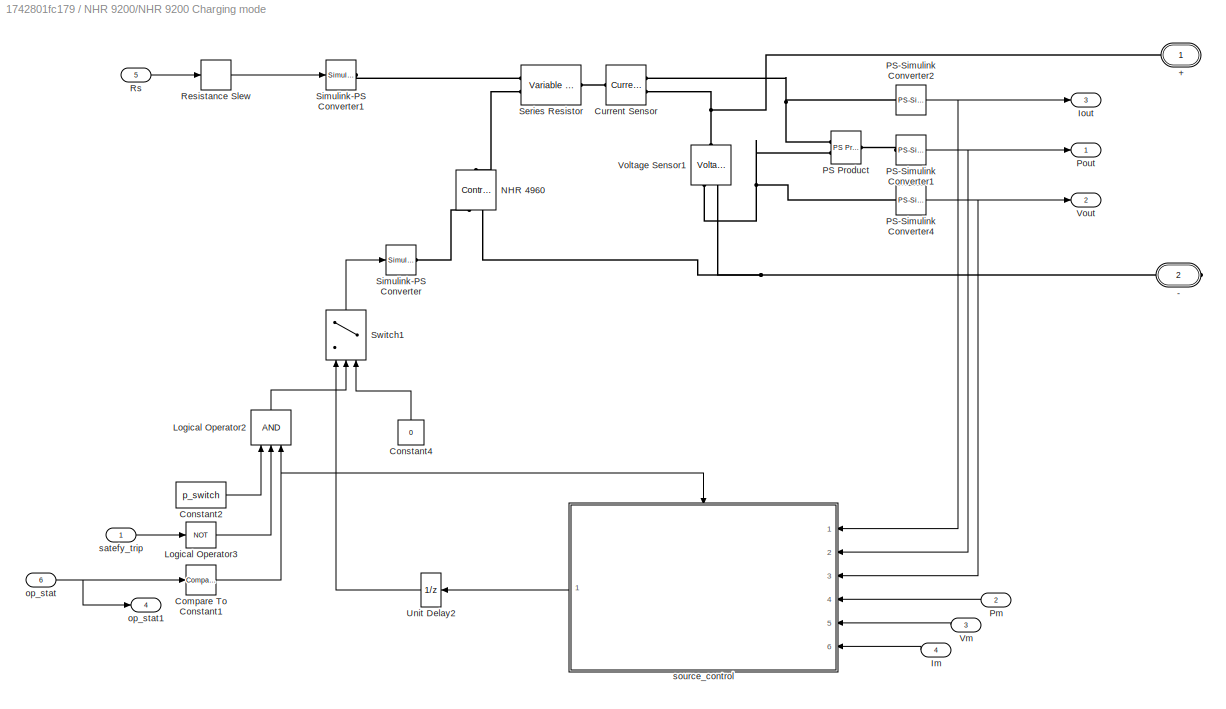
BLOCK [SubSystem] NHR 9200/NHR 9200 Charging mode
  Ports = [6, 4, 0, 0, 0, 0, 2]
  RequestExecContextInheritance = off
BLOCK [PMIOPort] NHR 9200/NHR 9200 Charging mode/+
  NameLocation = top
  Side = Right
  Tag = PMCPort
BLOCK [PMIOPort] NHR 9200/NHR 9200 Charging mode/-
  NameLocation = top
  Port = 2
  Side = Right
  Tag = PMCPort
BLOCK [Reference] NHR 9200/NHR 9200 Charging mode/Compare To Constant1  REF=simulink/Logic and Bit
Operations/Compare
To Constant
  Ports = [1, 1]
  SourceBlock = simulink/Logic and Bit\nOperations/Compare\nTo Constant
  SourceProductBaseCode = SL
  SourceType = Compare To Constant
BLOCK [Constant] NHR 9200/NHR 9200 Charging mode/Constant2
  NameLocation = top
  Value = p_switch
BLOCK [Constant] NHR 9200/NHR 9200 Charging mode/Constant4
  NameLocation = right
  Value = 0
BLOCK [Reference] NHR 9200/NHR 9200 Charging mode/Current Sensor  REF=fl_lib/Electrical/Electrical Sensors/Current Sensor
  Ports = [0, 0, 0, 0, 0, 1, 2]
  SourceBlock = fl_lib/Electrical/Electrical Sensors/Current Sensor
  SourceProductBaseCode = SS
  SourceType = Current Sensor
BLOCK [Inport] NHR 9200/NHR 9200 Charging mode/Im
  Port = 4
BLOCK [Outport] NHR 9200/NHR 9200 Charging mode/Iout
  Port = 3
  VectorParamsAs1DForOutWhenUnconnected = off
BLOCK [Logic] NHR 9200/NHR 9200 Charging mode/Logical Operator2
  AllPortsSameDT = off
  Inputs = 3
  NameLocation = left
  OutDataTypeStr = boolean
  Ports = [3, 1]
BLOCK [Logic] NHR 9200/NHR 9200 Charging mode/Logical Operator3
  AllPortsSameDT = off
  NameLocation = top
  Operator = NOT
  OutDataTypeStr = boolean
  Ports = [1, 1]
BLOCK [Reference] NHR 9200/NHR 9200 Charging mode/NHR 4960  REF=fl_lib/Electrical/Electrical Sources/Controlled Voltage
Source
  NameLocation = right
  Ports = [0, 0, 0, 0, 0, 1, 2]
  SourceBlock = fl_lib/Electrical/Electrical Sources/Controlled Voltage\nSource
  SourceProductBaseCode = SS
  SourceType = Controlled Voltage\nSource
BLOCK [Reference] NHR 9200/NHR 9200 Charging mode/PS Product  REF=fl_lib/Physical Signals/Functions/PS Product
  Ports = [0, 0, 0, 0, 0, 2, 1]
  SourceBlock = fl_lib/Physical Signals/Functions/PS Product
  SourceProductBaseCode = SS
  SourceType = PS Product
BLOCK [Reference] NHR 9200/NHR 9200 Charging mode/PS-Simulink Converter1  REF=nesl_utility/PS-Simulink
Converter
  Ports = [0, 1, 0, 0, 0, 1]
  SourceBlock = nesl_utility/PS-Simulink\nConverter
  SourceProductBaseCode = SS
  SourceType = PS-Simulink\nConverter
BLOCK [Reference] NHR 9200/NHR 9200 Charging mode/PS-Simulink Converter2  REF=nesl_utility/PS-Simulink
Converter
  Ports = [0, 1, 0, 0, 0, 1]
  SourceBlock = nesl_utility/PS-Simulink\nConverter
  SourceProductBaseCode = SS
  SourceType = PS-Simulink\nConverter
BLOCK [Reference] NHR 9200/NHR 9200 Charging mode/PS-Simulink Converter4  REF=nesl_utility/PS-Simulink
Converter
  Ports = [0, 1, 0, 0, 0, 1]
  SourceBlock = nesl_utility/PS-Simulink\nConverter
  SourceProductBaseCode = SS
  SourceType = PS-Simulink\nConverter
BLOCK [Inport] NHR 9200/NHR 9200 Charging mode/Pm
  Port = 2
BLOCK [Outport] NHR 9200/NHR 9200 Charging mode/Pout
  VectorParamsAs1DForOutWhenUnconnected = off
BLOCK [RateLimiter] NHR 9200/NHR 9200 Charging mode/Resistance Slew
  FallingSlewLimit = -Rslew
  RisingSlewLimit = Rslew
BLOCK [Inport] NHR 9200/NHR 9200 Charging mode/Rs
  Port = 5
BLOCK [Reference] NHR 9200/NHR 9200 Charging mode/Series Resistor  REF=fl_lib/Electrical/Electrical Elements/Variable Resistor
  Ports = [0, 0, 0, 0, 0, 2, 1]
  SourceBlock = fl_lib/Electrical/Electrical Elements/Variable Resistor
  SourceProductBaseCode = SS
  SourceType = Variable Resistor
BLOCK [Reference] NHR 9200/NHR 9200 Charging mode/Simulink-PS Converter  REF=nesl_utility/Simulink-PS
Converter
  Ports = [1, 0, 0, 0, 0, 0, 1]
  SourceBlock = nesl_utility/Simulink-PS\nConverter
  SourceProductBaseCode = SS
  SourceType = Simulink-PS\nConverter
BLOCK [Reference] NHR 9200/NHR 9200 Charging mode/Simulink-PS Converter1  REF=nesl_utility/Simulink-PS
Converter
  Ports = [1, 0, 0, 0, 0, 0, 1]
  SourceBlock = nesl_utility/Simulink-PS\nConverter
  SourceProductBaseCode = SS
  SourceType = Simulink-PS\nConverter
BLOCK [Switch] NHR 9200/NHR 9200 Charging mode/Switch1
  Criteria = u2 > Threshold
  InputSameDT = off
  NameLocation = left
BLOCK [UnitDelay] NHR 9200/NHR 9200 Charging mode/Unit Delay2
  HasFrameUpgradeWarning = on
  InitialCondition = 1
  NameLocation = top
  SampleTime = -1
BLOCK [Inport] NHR 9200/NHR 9200 Charging mode/Vm
  Port = 3
BLOCK [Reference] NHR 9200/NHR 9200 Charging mode/Voltage Sensor1  REF=fl_lib/Electrical/Electrical Sensors/Voltage Sensor
  NameLocation = right
  Ports = [0, 0, 0, 0, 0, 1, 2]
  SourceBlock = fl_lib/Electrical/Electrical Sensors/Voltage Sensor
  SourceProductBaseCode = SS
  SourceType = Voltage Sensor
BLOCK [Outport] NHR 9200/NHR 9200 Charging mode/Vout
  Port = 2
  VectorParamsAs1DForOutWhenUnconnected = off
BLOCK [Inport] NHR 9200/NHR 9200 Charging mode/op_stat 
  Port = 6
BLOCK [Outport] NHR 9200/NHR 9200 Charging mode/op_stat1
  Port = 4
  VectorParamsAs1DForOutWhenUnconnected = off
BLOCK [Inport] NHR 9200/NHR 9200 Charging mode/satefy_trip
BLOCK [SubSystem] NHR 9200/NHR 9200 Charging mode/source_control
  Ports = [6, 1, 1]
  RequestExecContextInheritance = off
BLOCK [RateLimiter] NHR 9200/NHR 9200 Charging mode/source_control/Current Slew
  FallingSlewLimit = -Islew
  RisingSlewLimit = Islew
BLOCK [EnablePort] NHR 9200/NHR 9200 Charging mode/source_control/Enable
  Ports = []
BLOCK [Inport] NHR 9200/NHR 9200 Charging mode/source_control/Im
  Port = 6
BLOCK [Inport] NHR 9200/NHR 9200 Charging mode/source_control/Iout
BLOCK [SubSystem] NHR 9200/NHR 9200 Charging mode/source_control/MATLAB Function
  ErrorFcn = Stateflow.Translate.translate
  PermitHierarchicalResolution = ExplicitOnly
  Ports = [4, 1]
  RequestExecContextInheritance = off
  SFBlockType = MATLAB Function
  TreatAsAtomicUnit = on
BLOCK [Demux] NHR 9200/NHR 9200 Charging mode/source_control/MATLAB Function/ Demux 
  Outputs = 1
  Ports = [1, 1]
BLOCK [S-Function] NHR 9200/NHR 9200 Charging mode/source_control/MATLAB Function/ SFunction 
  EnableBusSupport = on
  FunctionName = sf_sfun
  PortCounts = [4 2]
  Ports = [4, 2]
  SFcnIsStateOwnerBlock = off
  SFunctionDeploymentMode = off
  Tag = Stateflow S-Function 2
BLOCK [Terminator] NHR 9200/NHR 9200 Charging mode/source_control/MATLAB Function/ Terminator 
BLOCK [Inport] NHR 9200/NHR 9200 Charging mode/source_control/MATLAB Function/i
  Port = 3
BLOCK [Inport] NHR 9200/NHR 9200 Charging mode/source_control/MATLAB Function/p
BLOCK [Inport] NHR 9200/NHR 9200 Charging mode/source_control/MATLAB Function/v
  Port = 2
BLOCK [Inport] NHR 9200/NHR 9200 Charging mode/source_control/MATLAB Function/x
  Port = 4
BLOCK [Outport] NHR 9200/NHR 9200 Charging mode/source_control/MATLAB Function/y
  VectorParamsAs1DForOutWhenUnconnected = off
BLOCK [Memory] NHR 9200/NHR 9200 Charging mode/source_control/Memory
BLOCK [Inport] NHR 9200/NHR 9200 Charging mode/source_control/Pm
  Port = 4
BLOCK [Inport] NHR 9200/NHR 9200 Charging mode/source_control/Pout
  Port = 2
BLOCK [RateLimiter] NHR 9200/NHR 9200 Charging mode/source_control/Power Slew
  FallingSlewLimit = -Pslew
  RisingSlewLimit = Pslew
BLOCK [Sum] NHR 9200/NHR 9200 Charging mode/source_control/Sum
  Inputs = -+
  NameLocation = top
  Ports = [2, 1]
BLOCK [Sum] NHR 9200/NHR 9200 Charging mode/source_control/Sum1
  Inputs = -+
  NameLocation = top
  Ports = [2, 1]
BLOCK [Sum] NHR 9200/NHR 9200 Charging mode/source_control/Sum2
  Inputs = -+
  NameLocation = top
  Ports = [2, 1]
BLOCK [Outport] NHR 9200/NHR 9200 Charging mode/source_control/Vin
  NameLocation = top
  VectorParamsAs1DForOutWhenUnconnected = off
BLOCK [Inport] NHR 9200/NHR 9200 Charging mode/source_control/Vm
  Port = 5
BLOCK [RateLimiter] NHR 9200/NHR 9200 Charging mode/source_control/Voltage Slew
  FallingSlewLimit = -Vslew
  RisingSlewLimit = Vslew
BLOCK [Inport] NHR 9200/NHR 9200 Charging mode/source_control/Vout
  Port = 3
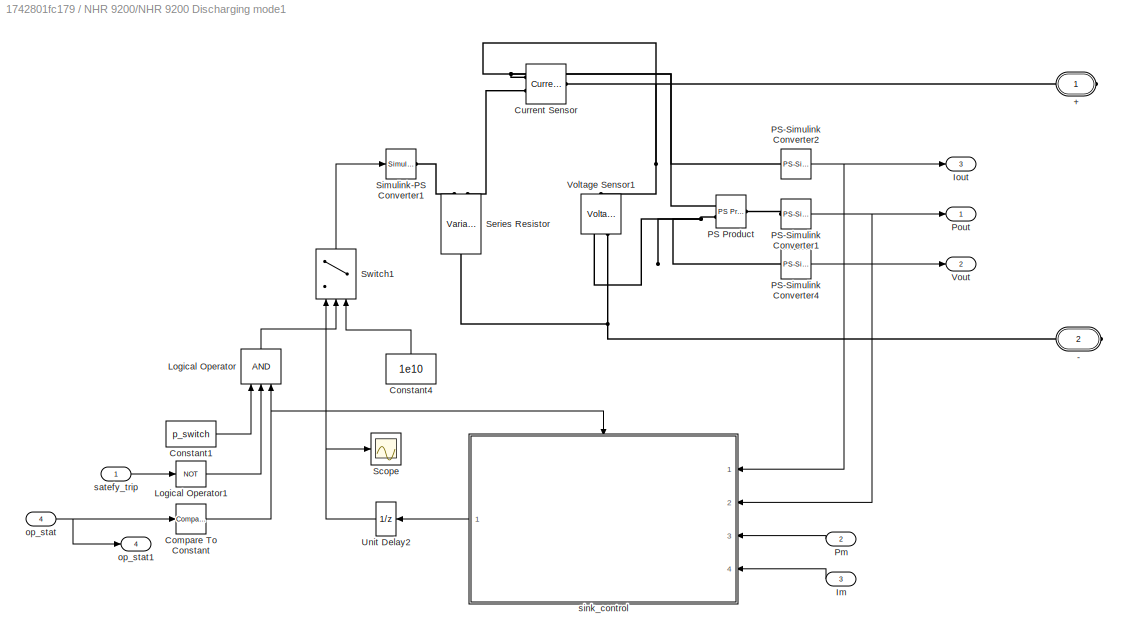
BLOCK [SubSystem] NHR 9200/NHR 9200 Discharging mode1
  Ports = [4, 4, 0, 0, 0, 0, 2]
  RequestExecContextInheritance = off
BLOCK [PMIOPort] NHR 9200/NHR 9200 Discharging mode1/+
  NameLocation = top
  Side = Right
  Tag = PMCPort
BLOCK [PMIOPort] NHR 9200/NHR 9200 Discharging mode1/-
  NameLocation = top
  Port = 2
  Side = Right
  Tag = PMCPort
BLOCK [Reference] NHR 9200/NHR 9200 Discharging mode1/Compare To Constant  REF=simulink/Logic and Bit
Operations/Compare
To Constant
  Ports = [1, 1]
  SourceBlock = simulink/Logic and Bit\nOperations/Compare\nTo Constant
  SourceProductBaseCode = SL
  SourceType = Compare To Constant
BLOCK [Constant] NHR 9200/NHR 9200 Discharging mode1/Constant1
  NameLocation = top
  Value = p_switch
BLOCK [Constant] NHR 9200/NHR 9200 Discharging mode1/Constant4
  NameLocation = right
  Value = 1e10
BLOCK [Reference] NHR 9200/NHR 9200 Discharging mode1/Current Sensor  REF=fl_lib/Electrical/Electrical Sensors/Current Sensor
  Ports = [0, 0, 0, 0, 0, 1, 2]
  SourceBlock = fl_lib/Electrical/Electrical Sensors/Current Sensor
  SourceProductBaseCode = SS
  SourceType = Current Sensor
BLOCK [Inport] NHR 9200/NHR 9200 Discharging mode1/Im
  Port = 3
BLOCK [Outport] NHR 9200/NHR 9200 Discharging mode1/Iout
  Port = 3
  VectorParamsAs1DForOutWhenUnconnected = off
BLOCK [Logic] NHR 9200/NHR 9200 Discharging mode1/Logical Operator
  AllPortsSameDT = off
  Inputs = 3
  NameLocation = left
  OutDataTypeStr = boolean
  Ports = [3, 1]
BLOCK [Logic] NHR 9200/NHR 9200 Discharging mode1/Logical Operator1
  AllPortsSameDT = off
  NameLocation = top
  Operator = NOT
  OutDataTypeStr = boolean
  Ports = [1, 1]
BLOCK [Reference] NHR 9200/NHR 9200 Discharging mode1/PS Product  REF=fl_lib/Physical Signals/Functions/PS Product
  Ports = [0, 0, 0, 0, 0, 2, 1]
  SourceBlock = fl_lib/Physical Signals/Functions/PS Product
  SourceProductBaseCode = SS
  SourceType = PS Product
BLOCK [Reference] NHR 9200/NHR 9200 Discharging mode1/PS-Simulink Converter1  REF=nesl_utility/PS-Simulink
Converter
  Ports = [0, 1, 0, 0, 0, 1]
  SourceBlock = nesl_utility/PS-Simulink\nConverter
  SourceProductBaseCode = SS
  SourceType = PS-Simulink\nConverter
BLOCK [Reference] NHR 9200/NHR 9200 Discharging mode1/PS-Simulink Converter2  REF=nesl_utility/PS-Simulink
Converter
  Ports = [0, 1, 0, 0, 0, 1]
  SourceBlock = nesl_utility/PS-Simulink\nConverter
  SourceProductBaseCode = SS
  SourceType = PS-Simulink\nConverter
BLOCK [Reference] NHR 9200/NHR 9200 Discharging mode1/PS-Simulink Converter4  REF=nesl_utility/PS-Simulink
Converter
  Ports = [0, 1, 0, 0, 0, 1]
  SourceBlock = nesl_utility/PS-Simulink\nConverter
  SourceProductBaseCode = SS
  SourceType = PS-Simulink\nConverter
BLOCK [Inport] NHR 9200/NHR 9200 Discharging mode1/Pm
  Port = 2
BLOCK [Outport] NHR 9200/NHR 9200 Discharging mode1/Pout
  VectorParamsAs1DForOutWhenUnconnected = off
BLOCK [Scope] NHR 9200/NHR 9200 Discharging mode1/Scope
  Floating = off
  NumInputPorts = 1
  Ports = [1]
  ScopeSpecificationString = Simulink.scopes.TimeScopeBlockCfg('CurrentConfiguration', extmgr.ConfigurationSet(extmgr.Configuration('Core','General UI',true),extmgr.Configuration('Core','Source UI',true),extmgr.Configuration('Sources','WiredSimulink',true,'DataLoggingVariableName','ScopeData1'),extmgr.Configuration('Visuals','Time Domain',true,'SerializedDisplays',{struct('MinYLimReal','-894.8875','MaxYLimReal','104.9875','YL...<+1404ch>
BLOCK [Reference] NHR 9200/NHR 9200 Discharging mode1/Series Resistor  REF=fl_lib/Electrical/Electrical Elements/Variable Resistor
  NameLocation = left
  Ports = [0, 0, 0, 0, 0, 2, 1]
  SourceBlock = fl_lib/Electrical/Electrical Elements/Variable Resistor
  SourceProductBaseCode = SS
  SourceType = Variable Resistor
BLOCK [Reference] NHR 9200/NHR 9200 Discharging mode1/Simulink-PS Converter1  REF=nesl_utility/Simulink-PS
Converter
  Ports = [1, 0, 0, 0, 0, 0, 1]
  SourceBlock = nesl_utility/Simulink-PS\nConverter
  SourceProductBaseCode = SS
  SourceType = Simulink-PS\nConverter
BLOCK [Switch] NHR 9200/NHR 9200 Discharging mode1/Switch1
  Criteria = u2 > Threshold
  InputSameDT = off
  NameLocation = left
BLOCK [UnitDelay] NHR 9200/NHR 9200 Discharging mode1/Unit Delay2
  HasFrameUpgradeWarning = on
  InitialCondition = 1
  NameLocation = top
  SampleTime = -1
BLOCK [Reference] NHR 9200/NHR 9200 Discharging mode1/Voltage Sensor1  REF=fl_lib/Electrical/Electrical Sensors/Voltage Sensor
  NameLocation = right
  Ports = [0, 0, 0, 0, 0, 1, 2]
  SourceBlock = fl_lib/Electrical/Electrical Sensors/Voltage Sensor
  SourceProductBaseCode = SS
  SourceType = Voltage Sensor
BLOCK [Outport] NHR 9200/NHR 9200 Discharging mode1/Vout
  Port = 2
  VectorParamsAs1DForOutWhenUnconnected = off
BLOCK [Inport] NHR 9200/NHR 9200 Discharging mode1/op_stat 
  Port = 4
BLOCK [Outport] NHR 9200/NHR 9200 Discharging mode1/op_stat1
  Port = 4
  VectorParamsAs1DForOutWhenUnconnected = off
BLOCK [Inport] NHR 9200/NHR 9200 Discharging mode1/satefy_trip
BLOCK [SubSystem] NHR 9200/NHR 9200 Discharging mode1/sink_control
  MinAlgLoopOccurrences = on
  Ports = [4, 1, 1]
  RequestExecContextInheritance = off
BLOCK [RateLimiter] NHR 9200/NHR 9200 Discharging mode1/sink_control/Current Slew
  FallingSlewLimit = -Islew
  RisingSlewLimit = Islew
BLOCK [EnablePort] NHR 9200/NHR 9200 Discharging mode1/sink_control/Enable
  Ports = []
BLOCK [Gain] NHR 9200/NHR 9200 Discharging mode1/sink_control/Gain2
  Gain = -1
BLOCK [Inport] NHR 9200/NHR 9200 Discharging mode1/sink_control/Iout
BLOCK [Inport] NHR 9200/NHR 9200 Discharging mode1/sink_control/Iset
  Port = 4
BLOCK [SubSystem] NHR 9200/NHR 9200 Discharging mode1/sink_control/MATLAB Function1
  ErrorFcn = Stateflow.Translate.translate
  PermitHierarchicalResolution = ExplicitOnly
  Ports = [3, 1]
  RequestExecContextInheritance = off
  SFBlockType = MATLAB Function
  TreatAsAtomicUnit = on
BLOCK [Demux] NHR 9200/NHR 9200 Discharging mode1/sink_control/MATLAB Function1/ Demux 
  Outputs = 1
  Ports = [1, 1]
BLOCK [S-Function] NHR 9200/NHR 9200 Discharging mode1/sink_control/MATLAB Function1/ SFunction 
  EnableBusSupport = on
  FunctionName = sf_sfun
  PortCounts = [3 2]
  Ports = [3, 2]
  SFcnIsStateOwnerBlock = off
  SFunctionDeploymentMode = off
  Tag = Stateflow S-Function 1
BLOCK [Terminator] NHR 9200/NHR 9200 Discharging mode1/sink_control/MATLAB Function1/ Terminator 
BLOCK [Inport] NHR 9200/NHR 9200 Discharging mode1/sink_control/MATLAB Function1/i
  Port = 2
BLOCK [Inport] NHR 9200/NHR 9200 Discharging mode1/sink_control/MATLAB Function1/p
BLOCK [Inport] NHR 9200/NHR 9200 Discharging mode1/sink_control/MATLAB Function1/x
  Port = 3
BLOCK [Outport] NHR 9200/NHR 9200 Discharging mode1/sink_control/MATLAB Function1/y
  VectorParamsAs1DForOutWhenUnconnected = off
BLOCK [Memory] NHR 9200/NHR 9200 Discharging mode1/sink_control/Memory
BLOCK [Inport] NHR 9200/NHR 9200 Discharging mode1/sink_control/Pout
  Port = 2
BLOCK [RateLimiter] NHR 9200/NHR 9200 Discharging mode1/sink_control/Power Slew
  FallingSlewLimit = -Pslew
  RisingSlewLimit = Pslew
BLOCK [Inport] NHR 9200/NHR 9200 Discharging mode1/sink_control/Pset
  Port = 3
BLOCK [Outport] NHR 9200/NHR 9200 Discharging mode1/sink_control/Rin
  NameLocation = top
  VectorParamsAs1DForOutWhenUnconnected = off
BLOCK [Sum] NHR 9200/NHR 9200 Discharging mode1/sink_control/Sum1
  Inputs = -+
  NameLocation = top
  Ports = [2, 1]
BLOCK [Sum] NHR 9200/NHR 9200 Discharging mode1/sink_control/Sum2
  Inputs = -+
  NameLocation = top
  Ports = [2, 1]
BLOCK [UnitDelay] NHR 9200/NHR 9200 Discharging mode1/sink_control/Unit Delay2
  HasFrameUpgradeWarning = on
  InitialCondition = 1
  NameLocation = top
  SampleTime = -1
BLOCK [Outport] NHR 9200/NHR_out
  VectorParamsAs1DForOutWhenUnconnected = off
BLOCK [Inport] NHR 9200/Pm
  Port = 3
BLOCK [Inport] NHR 9200/Rs
  Port = 6
BLOCK [Reference] NHR 9200/Switch  REF=fl_lib/Electrical/Electrical Elements/Switch
  Ports = [0, 0, 0, 0, 0, 1, 2]
  SourceBlock = fl_lib/Electrical/Electrical Elements/Switch
  SourceProductBaseCode = SS
  SourceType = Switch
BLOCK [Reference] NHR 9200/Switch1  REF=fl_lib/Electrical/Electrical Elements/Switch
  Ports = [0, 0, 0, 0, 0, 1, 2]
  SourceBlock = fl_lib/Electrical/Electrical Elements/Switch
  SourceProductBaseCode = SS
  SourceType = Switch
BLOCK [Inport] NHR 9200/Trip
BLOCK [Inport] NHR 9200/Vm
  Port = 4
BLOCK [SubSystem] NHR 9200/connect
  Ports = [1, 0, 0, 0, 0, 0, 1]
  RequestExecContextInheritance = off
BLOCK [Reference] NHR 9200/connect/Compare To Constant2  REF=simulink/Logic and Bit
Operations/Compare
To Constant
  NameLocation = left
  Ports = [1, 1]
  SourceBlock = simulink/Logic and Bit\nOperations/Compare\nTo Constant
  SourceProductBaseCode = SL
  SourceType = Compare To Constant
BLOCK [DataTypeConversion] NHR 9200/connect/Data Type Conversion
  OutDataTypeStr = double
  RndMeth = Floor
  SaturateOnIntegerOverflow = off
BLOCK [Reference] NHR 9200/connect/Simulink-PS Converter  REF=nesl_utility/Simulink-PS
Converter
  Ports = [1, 0, 0, 0, 0, 0, 1]
  SourceBlock = nesl_utility/Simulink-PS\nConverter
  SourceProductBaseCode = SS
  SourceType = Simulink-PS\nConverter
BLOCK [Inport] NHR 9200/connect/op_state
  NameLocation = right
BLOCK [PMIOPort] NHR 9200/connect/sw_on
  Side = Right
BLOCK [SubSystem] NHR 9200/connect1
  Ports = [1, 0, 0, 0, 0, 0, 1]
  RequestExecContextInheritance = off
BLOCK [Reference] NHR 9200/connect1/Compare To Constant2  REF=simulink/Logic and Bit
Operations/Compare
To Constant
  NameLocation = left
  Ports = [1, 1]
  SourceBlock = simulink/Logic and Bit\nOperations/Compare\nTo Constant
  SourceProductBaseCode = SL
  SourceType = Compare To Constant
BLOCK [DataTypeConversion] NHR 9200/connect1/Data Type Conversion
  OutDataTypeStr = double
  RndMeth = Floor
  SaturateOnIntegerOverflow = off
BLOCK [Reference] NHR 9200/connect1/Simulink-PS Converter  REF=nesl_utility/Simulink-PS
Converter
  Ports = [1, 0, 0, 0, 0, 0, 1]
  SourceBlock = nesl_utility/Simulink-PS\nConverter
  SourceProductBaseCode = SS
  SourceType = Simulink-PS\nConverter
BLOCK [Inport] NHR 9200/connect1/op_state
  NameLocation = right
BLOCK [PMIOPort] NHR 9200/connect1/sw_on
  Side = Right
BLOCK [Inport] NHR 9200/op_state
  Port = 2
BLOCK [Reference] Solver Configuration  REF=nesl_utility/Solver
Configuration
  Ports = [0, 0, 0, 0, 0, 0, 1]
  SourceBlock = nesl_utility/Solver\nConfiguration
  SourceProductBaseCode = SS
  SourceType = Solver\nConfiguration
ANNOTATION (root): Step-1 Select operating mode and provide input values
ANNOTATION (root): Step-2 NHR ON/OFF Provide slew rates
ANNOTATION (root): Step-3 Provide safety settings corresponding to the mode selection (step-1)
ANNOTATION (root): Step-4 Provide zero battery detect voltage when operating in sink mode/ source mode no battery operation
ANNOTATION (root): Step-5 Comment out battery (sink) for source operation. Comment out Load for intended operation. Choose desired value for battery (sink/source) and Load.
ANNOTATION Display: Imax_trip (charge)
ANNOTATION Display: Imax_trip (discharge)
ANNOTATION Display: Pmax_trip (charge)
ANNOTATION Display: Pmax_trip (discharge)
ANNOTATION Display: Trip
ANNOTATION Display: Vmax_trip
ANNOTATION Display: Vmin_trip
LINE Battery detection NHR 9200 (source)/Battery detection/Compare To Constant1:1 -> Battery detection NHR 9200 (source)/Battery detection/Switch:2
LINE Battery detection NHR 9200 (source)/Battery detection/Compare To Constant:1 -> Battery detection NHR 9200 (source)/Battery detection/Unit Delay2:1
LINE Battery detection NHR 9200 (source)/Battery detection/Constant1:1 -> Battery detection NHR 9200 (source)/Battery detection/Switch:1
LINE Battery detection NHR 9200 (source)/Battery detection/Constant:1 -> Battery detection NHR 9200 (source)/Battery detection/Compare To Constant1:1
LINE Battery detection NHR 9200 (source)/Battery detection/Data Type Conversion:1 -> Battery detection NHR 9200 (source)/Battery detection/Simulink-PS Converter:1
NET Battery detection NHR 9200 (source)/Battery detection/PS-Simulink Converter3:1 -> Battery detection NHR 9200 (source)/Battery detection/Compare To Constant:1, Battery detection NHR 9200 (source)/Battery detection/Goto:1
NET Battery detection NHR 9200 (source)/Battery detection/Switch:1 -> Battery detection NHR 9200 (source)/Battery detection/Data Type Conversion:1, Battery detection NHR 9200 (source)/Battery detection/Goto1:1
LINE Battery detection NHR 9200 (source)/Battery detection/Unit Delay2:1 -> Battery detection NHR 9200 (source)/Battery detection/Switch:3
LINE Display/Demux1:1 -> Display/Trip Signals:1
LINE Display/Demux1:2 -> Display/Trip Signals:2
LINE Display/Demux1:3 -> Display/Trip Signals:3
LINE Display/Demux1:4 -> Display/Trip Signals:4
LINE Display/Demux1:5 -> Display/Trip Signals:5
LINE Display/Demux1:6 -> Display/Trip Signals:6
LINE Display/Demux1:7 -> Display/Trip Signals:7
LINE Display/Demux:1 -> Display/NHR 9200 output waveforms [P,V,I]:1
NET Display/Demux:2 -> Display/Divide:1, Display/Mux:1, Display/NHR 9200 output waveforms [P,V,I]:2
NET Display/Demux:3 -> Display/Divide:2, Display/NHR 9200 output waveforms [P,V,I]:3
LINE Display/Demux:4 -> Display/Terminator:1
LINE Display/Divide:1 -> Display/R:1
LINE Display/From1:1 -> Display/Vout//Vuut:2
LINE Display/From:1 -> Display/Mux:2
LINE Display/Mux:1 -> Display/Vout//Vuut:1
LINE Display/NHR_out:1 -> Display/Demux:1
LINE Display/from_safety:1 -> Display/Demux1:1
LINE NHR 9200 (4912) Input Panel/Charging mode Input Params/Compare To Constant1:1 -> NHR 9200 (4912) Input Panel/Charging mode Input Params/Switch1:2
LINE NHR 9200 (4912) Input Panel/Charging mode Input Params/Compare To Constant2:1 -> NHR 9200 (4912) Input Panel/Charging mode Input Params/Switch2:2
LINE NHR 9200 (4912) Input Panel/Charging mode Input Params/Compare To Constant3:1 -> NHR 9200 (4912) Input Panel/Charging mode Input Params/Switch3:2
LINE NHR 9200 (4912) Input Panel/Charging mode Input Params/Compare To Constant:1 -> NHR 9200 (4912) Input Panel/Charging mode Input Params/Switch:2
LINE NHR 9200 (4912) Input Panel/Charging mode Input Params/Constant1:1 -> NHR 9200 (4912) Input Panel/Charging mode Input Params/Switch1:1
LINE NHR 9200 (4912) Input Panel/Charging mode Input Params/Constant2:1 -> NHR 9200 (4912) Input Panel/Charging mode Input Params/Switch2:1
LINE NHR 9200 (4912) Input Panel/Charging mode Input Params/Constant3:1 -> NHR 9200 (4912) Input Panel/Charging mode Input Params/Switch3:1
LINE NHR 9200 (4912) Input Panel/Charging mode Input Params/Constant:1 -> NHR 9200 (4912) Input Panel/Charging mode Input Params/Switch:1
NET NHR 9200 (4912) Input Panel/Charging mode Input Params/Gain:1 -> NHR 9200 (4912) Input Panel/Charging mode Input Params/Compare To Constant2:1, NHR 9200 (4912) Input Panel/Charging mode Input Params/Switch2:3
NET NHR 9200 (4912) Input Panel/Charging mode Input Params/I(max):1 -> NHR 9200 (4912) Input Panel/Charging mode Input Params/Compare To Constant1:1, NHR 9200 (4912) Input Panel/Charging mode Input Params/Switch1:3
LINE NHR 9200 (4912) Input Panel/Charging mode Input Params/P(max):1 -> NHR 9200 (4912) Input Panel/Charging mode Input Params/Gain:1
NET NHR 9200 (4912) Input Panel/Charging mode Input Params/Rs1:1 -> NHR 9200 (4912) Input Panel/Charging mode Input Params/Compare To Constant3:1, NHR 9200 (4912) Input Panel/Charging mode Input Params/Switch3:3
LINE NHR 9200 (4912) Input Panel/Charging mode Input Params/Switch1:1 -> NHR 9200 (4912) Input Panel/Charging mode Input Params/Im:1
LINE NHR 9200 (4912) Input Panel/Charging mode Input Params/Switch2:1 -> NHR 9200 (4912) Input Panel/Charging mode Input Params/Pm:1
LINE NHR 9200 (4912) Input Panel/Charging mode Input Params/Switch3:1 -> NHR 9200 (4912) Input Panel/Charging mode Input Params/Rs:1
LINE NHR 9200 (4912) Input Panel/Charging mode Input Params/Switch:1 -> NHR 9200 (4912) Input Panel/Charging mode Input Params/Vm:1
NET NHR 9200 (4912) Input Panel/Charging mode Input Params/V(max):1 -> NHR 9200 (4912) Input Panel/Charging mode Input Params/Compare To Constant:1, NHR 9200 (4912) Input Panel/Charging mode Input Params/Switch:3
LINE NHR 9200 (4912) Input Panel/Charging mode Input Params:1 -> NHR 9200 (4912) Input Panel/Mux:1
LINE NHR 9200 (4912) Input Panel/Charging mode Input Params:2 -> NHR 9200 (4912) Input Panel/Mux:2
LINE NHR 9200 (4912) Input Panel/Charging mode Input Params:3 -> NHR 9200 (4912) Input Panel/Mux:3
LINE NHR 9200 (4912) Input Panel/Charging mode Input Params:4 -> NHR 9200 (4912) Input Panel/Mux:4
LINE NHR 9200 (4912) Input Panel/Compare To Constant1:1 -> NHR 9200 (4912) Input Panel/Discharging mode Input Params:enable
LINE NHR 9200 (4912) Input Panel/Compare To Constant4:1 -> NHR 9200 (4912) Input Panel/Charging mode Input Params:enable
LINE NHR 9200 (4912) Input Panel/Constant1:1 -> NHR 9200 (4912) Input Panel/Multiport Switch:4
NET NHR 9200 (4912) Input Panel/Constant:1 -> NHR 9200 (4912) Input Panel/Compare To Constant1:1, NHR 9200 (4912) Input Panel/Compare To Constant4:1, NHR 9200 (4912) Input Panel/Multiport Switch:1, NHR 9200 (4912) Input Panel/op_state:1
LINE NHR 9200 (4912) Input Panel/Demux:1 -> NHR 9200 (4912) Input Panel/Vm:1
LINE NHR 9200 (4912) Input Panel/Demux:2 -> NHR 9200 (4912) Input Panel/Im:1
LINE NHR 9200 (4912) Input Panel/Demux:3 -> NHR 9200 (4912) Input Panel/Pm:1
LINE NHR 9200 (4912) Input Panel/Demux:4 -> NHR 9200 (4912) Input Panel/Rs:1
LINE NHR 9200 (4912) Input Panel/Discharging mode Input Params/Compare To Constant1:1 -> NHR 9200 (4912) Input Panel/Discharging mode Input Params/Switch1:2
LINE NHR 9200 (4912) Input Panel/Discharging mode Input Params/Compare To Constant2:1 -> NHR 9200 (4912) Input Panel/Discharging mode Input Params/Switch2:2
LINE NHR 9200 (4912) Input Panel/Discharging mode Input Params/Compare To Constant:1 -> NHR 9200 (4912) Input Panel/Discharging mode Input Params/Switch:2
LINE NHR 9200 (4912) Input Panel/Discharging mode Input Params/Constant1:1 -> NHR 9200 (4912) Input Panel/Discharging mode Input Params/Switch1:1
LINE NHR 9200 (4912) Input Panel/Discharging mode Input Params/Constant2:1 -> NHR 9200 (4912) Input Panel/Discharging mode Input Params/Switch2:1
LINE NHR 9200 (4912) Input Panel/Discharging mode Input Params/Constant:1 -> NHR 9200 (4912) Input Panel/Discharging mode Input Params/Switch:1
NET NHR 9200 (4912) Input Panel/Discharging mode Input Params/Gain:1 -> NHR 9200 (4912) Input Panel/Discharging mode Input Params/Compare To Constant2:1, NHR 9200 (4912) Input Panel/Discharging mode Input Params/Switch2:3
NET NHR 9200 (4912) Input Panel/Discharging mode Input Params/I(max):1 -> NHR 9200 (4912) Input Panel/Discharging mode Input Params/Compare To Constant1:1, NHR 9200 (4912) Input Panel/Discharging mode Input Params/Switch1:3
LINE NHR 9200 (4912) Input Panel/Discharging mode Input Params/P(max):1 -> NHR 9200 (4912) Input Panel/Discharging mode Input Params/Gain:1
LINE NHR 9200 (4912) Input Panel/Discharging mode Input Params/Rs1:1 -> NHR 9200 (4912) Input Panel/Discharging mode Input Params/Rs:1
LINE NHR 9200 (4912) Input Panel/Discharging mode Input Params/Switch1:1 -> NHR 9200 (4912) Input Panel/Discharging mode Input Params/Im:1
LINE NHR 9200 (4912) Input Panel/Discharging mode Input Params/Switch2:1 -> NHR 9200 (4912) Input Panel/Discharging mode Input Params/Pm:1
LINE NHR 9200 (4912) Input Panel/Discharging mode Input Params/Switch:1 -> NHR 9200 (4912) Input Panel/Discharging mode Input Params/Vm:1
NET NHR 9200 (4912) Input Panel/Discharging mode Input Params/V(max):1 -> NHR 9200 (4912) Input Panel/Discharging mode Input Params/Compare To Constant:1, NHR 9200 (4912) Input Panel/Discharging mode Input Params/Switch:3
LINE NHR 9200 (4912) Input Panel/Discharging mode Input Params:1 -> NHR 9200 (4912) Input Panel/Mux1:1
LINE NHR 9200 (4912) Input Panel/Discharging mode Input Params:2 -> NHR 9200 (4912) Input Panel/Mux1:2
LINE NHR 9200 (4912) Input Panel/Discharging mode Input Params:3 -> NHR 9200 (4912) Input Panel/Mux1:3
LINE NHR 9200 (4912) Input Panel/Discharging mode Input Params:4 -> NHR 9200 (4912) Input Panel/Mux1:4
LINE NHR 9200 (4912) Input Panel/Multiport Switch:1 -> NHR 9200 (4912) Input Panel/Demux:1
LINE NHR 9200 (4912) Input Panel/Mux1:1 -> NHR 9200 (4912) Input Panel/Multiport Switch:3
LINE NHR 9200 (4912) Input Panel/Mux:1 -> NHR 9200 (4912) Input Panel/Multiport Switch:2
LINE NHR 9200 (4912) Input Panel:1 -> NHR 9200:2
LINE NHR 9200 (4912) Input Panel:2 -> NHR 9200:3
LINE NHR 9200 (4912) Input Panel:3 -> NHR 9200:4
LINE NHR 9200 (4912) Input Panel:4 -> NHR 9200:5
LINE NHR 9200 (4912) Input Panel:5 -> NHR 9200:6
LINE NHR 9200 Safety Settings/Charge safety limits/I:1 -> NHR 9200 Safety Settings/Charge safety limits/Trip signal generator (max) Charge Current:1
LINE NHR 9200 Safety Settings/Charge safety limits/P:1 -> NHR 9200 Safety Settings/Charge safety limits/Trip signal generator (max) Charge Power:1
LINE NHR 9200 Safety Settings/Charge safety limits/Trip signal generator (max) Charge Current/signal_in:1 -> NHR 9200 Safety Settings/Charge safety limits/Trip signal generator (max) Charge Current/trip signal gen:1
LINE NHR 9200 Safety Settings/Charge safety limits/Trip signal generator (max) Charge Current/trip signal gen/-1:1 -> NHR 9200 Safety Settings/Charge safety limits/Trip signal generator (max) Charge Current/trip signal gen/D Latch1:1
LINE NHR 9200 Safety Settings/Charge safety limits/Trip signal generator (max) Charge Current/trip signal gen/-2:1 -> NHR 9200 Safety Settings/Charge safety limits/Trip signal generator (max) Charge Current/trip signal gen/Multiport Switch:3
LINE NHR 9200 Safety Settings/Charge safety limits/Trip signal generator (max) Charge Current/trip signal gen/-3:1 -> NHR 9200 Safety Settings/Charge safety limits/Trip signal generator (max) Charge Current/trip signal gen/Switch:1
LINE NHR 9200 Safety Settings/Charge safety limits/Trip signal generator (max) Charge Current/trip signal gen/-4:1 -> NHR 9200 Safety Settings/Charge safety limits/Trip signal generator (max) Charge Current/trip signal gen/Multiport Switch:4
LINE NHR 9200 Safety Settings/Charge safety limits/Trip signal generator (max) Charge Current/trip signal gen/-5:1 -> NHR 9200 Safety Settings/Charge safety limits/Trip signal generator (max) Charge Current/trip signal gen/Switch:3
NET NHR 9200 Safety Settings/Charge safety limits/Trip signal generator (max) Charge Current/trip signal gen/-7:1 -> NHR 9200 Safety Settings/Charge safety limits/Trip signal generator (max) Charge Current/trip signal gen/Compare To Constant1:1, NHR 9200 Safety Settings/Charge safety limits/Trip signal generator (max) Charge Current/trip signal gen/Compare To Constant:1
LINE NHR 9200 Safety Settings/Charge safety limits/Trip signal generator (max) Charge Current/trip signal gen/Add:1 -> NHR 9200 Safety Settings/Charge safety limits/Trip signal generator (max) Charge Current/trip signal gen/Multiport Switch:1
LINE NHR 9200 Safety Settings/Charge safety limits/Trip signal generator (max) Charge Current/trip signal gen/Compare To Constant1:1 -> NHR 9200 Safety Settings/Charge safety limits/Trip signal generator (max) Charge Current/trip signal gen/Data Type Conversion1:1
LINE NHR 9200 Safety Settings/Charge safety limits/Trip signal generator (max) Charge Current/trip signal gen/Compare To Constant:1 -> NHR 9200 Safety Settings/Charge safety limits/Trip signal generator (max) Charge Current/trip signal gen/Data Type Conversion:1
LINE NHR 9200 Safety Settings/Charge safety limits/Trip signal generator (max) Charge Current/trip signal gen/D Latch1:1 -> NHR 9200 Safety Settings/Charge safety limits/Trip signal generator (max) Charge Current/trip signal gen/Multiport Switch:2
LINE NHR 9200 Safety Settings/Charge safety limits/Trip signal generator (max) Charge Current/trip signal gen/D Latch1:2 -> NHR 9200 Safety Settings/Charge safety limits/Trip signal generator (max) Charge Current/trip signal gen/Terminator1:1
LINE NHR 9200 Safety Settings/Charge safety limits/Trip signal generator (max) Charge Current/trip signal gen/Data Type Conversion1:1 -> NHR 9200 Safety Settings/Charge safety limits/Trip signal generator (max) Charge Current/trip signal gen/Gain:1
LINE NHR 9200 Safety Settings/Charge safety limits/Trip signal generator (max) Charge Current/trip signal gen/Data Type Conversion:1 -> NHR 9200 Safety Settings/Charge safety limits/Trip signal generator (max) Charge Current/trip signal gen/Gain1:1
LINE NHR 9200 Safety Settings/Charge safety limits/Trip signal generator (max) Charge Current/trip signal gen/Gain1:1 -> NHR 9200 Safety Settings/Charge safety limits/Trip signal generator (max) Charge Current/trip signal gen/Add:1
LINE NHR 9200 Safety Settings/Charge safety limits/Trip signal generator (max) Charge Current/trip signal gen/Gain:1 -> NHR 9200 Safety Settings/Charge safety limits/Trip signal generator (max) Charge Current/trip signal gen/Add:2
LINE NHR 9200 Safety Settings/Charge safety limits/Trip signal generator (max) Charge Current/trip signal gen/Multiport Switch:1 -> NHR 9200 Safety Settings/Charge safety limits/Trip signal generator (max) Charge Current/trip signal gen/trip_out:1
LINE NHR 9200 Safety Settings/Charge safety limits/Trip signal generator (max) Charge Current/trip signal gen/On Delay:1 -> NHR 9200 Safety Settings/Charge safety limits/Trip signal generator (max) Charge Current/trip signal gen/D Latch1:2
LINE NHR 9200 Safety Settings/Charge safety limits/Trip signal generator (max) Charge Current/trip signal gen/Switch:1 -> NHR 9200 Safety Settings/Charge safety limits/Trip signal generator (max) Charge Current/trip signal gen/On Delay:1
LINE NHR 9200 Safety Settings/Charge safety limits/Trip signal generator (max) Charge Current/trip signal gen/signal in:1 -> NHR 9200 Safety Settings/Charge safety limits/Trip signal generator (max) Charge Current/trip signal gen/Switch:2
LINE NHR 9200 Safety Settings/Charge safety limits/Trip signal generator (max) Charge Current/trip signal gen:1 -> NHR 9200 Safety Settings/Charge safety limits/Trip signal generator (max) Charge Current/signal_trip:1
LINE NHR 9200 Safety Settings/Charge safety limits/Trip signal generator (max) Charge Current:1 -> NHR 9200 Safety Settings/Charge safety limits/Unit Delay2:1
LINE NHR 9200 Safety Settings/Charge safety limits/Trip signal generator (max) Charge Power/signal_in:1 -> NHR 9200 Safety Settings/Charge safety limits/Trip signal generator (max) Charge Power/trip signal gen:1
LINE NHR 9200 Safety Settings/Charge safety limits/Trip signal generator (max) Charge Power/trip signal gen/-1:1 -> NHR 9200 Safety Settings/Charge safety limits/Trip signal generator (max) Charge Power/trip signal gen/D Latch1:1
LINE NHR 9200 Safety Settings/Charge safety limits/Trip signal generator (max) Charge Power/trip signal gen/-2:1 -> NHR 9200 Safety Settings/Charge safety limits/Trip signal generator (max) Charge Power/trip signal gen/Multiport Switch:3
LINE NHR 9200 Safety Settings/Charge safety limits/Trip signal generator (max) Charge Power/trip signal gen/-3:1 -> NHR 9200 Safety Settings/Charge safety limits/Trip signal generator (max) Charge Power/trip signal gen/Switch:1
LINE NHR 9200 Safety Settings/Charge safety limits/Trip signal generator (max) Charge Power/trip signal gen/-4:1 -> NHR 9200 Safety Settings/Charge safety limits/Trip signal generator (max) Charge Power/trip signal gen/Multiport Switch:4
LINE NHR 9200 Safety Settings/Charge safety limits/Trip signal generator (max) Charge Power/trip signal gen/-5:1 -> NHR 9200 Safety Settings/Charge safety limits/Trip signal generator (max) Charge Power/trip signal gen/Switch:3
NET NHR 9200 Safety Settings/Charge safety limits/Trip signal generator (max) Charge Power/trip signal gen/-7:1 -> NHR 9200 Safety Settings/Charge safety limits/Trip signal generator (max) Charge Power/trip signal gen/Compare To Constant1:1, NHR 9200 Safety Settings/Charge safety limits/Trip signal generator (max) Charge Power/trip signal gen/Compare To Constant:1
LINE NHR 9200 Safety Settings/Charge safety limits/Trip signal generator (max) Charge Power/trip signal gen/Add:1 -> NHR 9200 Safety Settings/Charge safety limits/Trip signal generator (max) Charge Power/trip signal gen/Multiport Switch:1
LINE NHR 9200 Safety Settings/Charge safety limits/Trip signal generator (max) Charge Power/trip signal gen/Compare To Constant1:1 -> NHR 9200 Safety Settings/Charge safety limits/Trip signal generator (max) Charge Power/trip signal gen/Data Type Conversion1:1
LINE NHR 9200 Safety Settings/Charge safety limits/Trip signal generator (max) Charge Power/trip signal gen/Compare To Constant:1 -> NHR 9200 Safety Settings/Charge safety limits/Trip signal generator (max) Charge Power/trip signal gen/Data Type Conversion:1
LINE NHR 9200 Safety Settings/Charge safety limits/Trip signal generator (max) Charge Power/trip signal gen/D Latch1:1 -> NHR 9200 Safety Settings/Charge safety limits/Trip signal generator (max) Charge Power/trip signal gen/Multiport Switch:2
LINE NHR 9200 Safety Settings/Charge safety limits/Trip signal generator (max) Charge Power/trip signal gen/D Latch1:2 -> NHR 9200 Safety Settings/Charge safety limits/Trip signal generator (max) Charge Power/trip signal gen/Terminator1:1
LINE NHR 9200 Safety Settings/Charge safety limits/Trip signal generator (max) Charge Power/trip signal gen/Data Type Conversion1:1 -> NHR 9200 Safety Settings/Charge safety limits/Trip signal generator (max) Charge Power/trip signal gen/Gain:1
LINE NHR 9200 Safety Settings/Charge safety limits/Trip signal generator (max) Charge Power/trip signal gen/Data Type Conversion:1 -> NHR 9200 Safety Settings/Charge safety limits/Trip signal generator (max) Charge Power/trip signal gen/Gain1:1
LINE NHR 9200 Safety Settings/Charge safety limits/Trip signal generator (max) Charge Power/trip signal gen/Gain1:1 -> NHR 9200 Safety Settings/Charge safety limits/Trip signal generator (max) Charge Power/trip signal gen/Add:1
LINE NHR 9200 Safety Settings/Charge safety limits/Trip signal generator (max) Charge Power/trip signal gen/Gain:1 -> NHR 9200 Safety Settings/Charge safety limits/Trip signal generator (max) Charge Power/trip signal gen/Add:2
LINE NHR 9200 Safety Settings/Charge safety limits/Trip signal generator (max) Charge Power/trip signal gen/Multiport Switch:1 -> NHR 9200 Safety Settings/Charge safety limits/Trip signal generator (max) Charge Power/trip signal gen/trip_out:1
LINE NHR 9200 Safety Settings/Charge safety limits/Trip signal generator (max) Charge Power/trip signal gen/On Delay:1 -> NHR 9200 Safety Settings/Charge safety limits/Trip signal generator (max) Charge Power/trip signal gen/D Latch1:2
LINE NHR 9200 Safety Settings/Charge safety limits/Trip signal generator (max) Charge Power/trip signal gen/Switch:1 -> NHR 9200 Safety Settings/Charge safety limits/Trip signal generator (max) Charge Power/trip signal gen/On Delay:1
LINE NHR 9200 Safety Settings/Charge safety limits/Trip signal generator (max) Charge Power/trip signal gen/signal in:1 -> NHR 9200 Safety Settings/Charge safety limits/Trip signal generator (max) Charge Power/trip signal gen/Switch:2
LINE NHR 9200 Safety Settings/Charge safety limits/Trip signal generator (max) Charge Power/trip signal gen:1 -> NHR 9200 Safety Settings/Charge safety limits/Trip signal generator (max) Charge Power/signal_trip:1
LINE NHR 9200 Safety Settings/Charge safety limits/Trip signal generator (max) Charge Power:1 -> NHR 9200 Safety Settings/Charge safety limits/Unit Delay1:1
LINE NHR 9200 Safety Settings/Charge safety limits/Unit Delay1:1 -> NHR 9200 Safety Settings/Charge safety limits/P_trip:1
LINE NHR 9200 Safety Settings/Charge safety limits/Unit Delay2:1 -> NHR 9200 Safety Settings/Charge safety limits/I_trip:1
NET NHR 9200 Safety Settings/Charge safety limits:1 -> NHR 9200 Safety Settings/Logical Operator3:5, NHR 9200 Safety Settings/Mux:6
NET NHR 9200 Safety Settings/Charge safety limits:2 -> NHR 9200 Safety Settings/Logical Operator3:6, NHR 9200 Safety Settings/Mux:7
LINE NHR 9200 Safety Settings/Compare To Constant1:1 -> NHR 9200 Safety Settings/Logical Operator1:2
LINE NHR 9200 Safety Settings/Compare To Constant2:1 -> NHR 9200 Safety Settings/Logical Operator1:1
LINE NHR 9200 Safety Settings/Compare To Constant3:1 -> NHR 9200 Safety Settings/Logical Operator2:2
LINE NHR 9200 Safety Settings/Compare To Constant4:1 -> NHR 9200 Safety Settings/Logical Operator2:1
LINE NHR 9200 Safety Settings/Data Type Conversion:1 -> NHR 9200 Safety Settings/Unit Delay2:1
NET NHR 9200 Safety Settings/Demux:1 -> NHR 9200 Safety Settings/Charge safety limits:2, NHR 9200 Safety Settings/Discharge safety limits:2
LINE NHR 9200 Safety Settings/Demux:2 -> NHR 9200 Safety Settings/Global safety limits:1
NET NHR 9200 Safety Settings/Demux:3 -> NHR 9200 Safety Settings/Charge safety limits:1, NHR 9200 Safety Settings/Discharge safety limits:1
NET NHR 9200 Safety Settings/Demux:4 -> NHR 9200 Safety Settings/Compare To Constant1:1, NHR 9200 Safety Settings/Compare To Constant2:1, NHR 9200 Safety Settings/Compare To Constant3:1, NHR 9200 Safety Settings/Compare To Constant4:1
LINE NHR 9200 Safety Settings/Discharge safety limits/I:1 -> NHR 9200 Safety Settings/Discharge safety limits/Trip signal generator (max) Discharge Current:1
LINE NHR 9200 Safety Settings/Discharge safety limits/P:1 -> NHR 9200 Safety Settings/Discharge safety limits/Trip signal generator (max) Discharge Power:1
LINE NHR 9200 Safety Settings/Discharge safety limits/Trip signal generator (max) Discharge Current/signal_in:1 -> NHR 9200 Safety Settings/Discharge safety limits/Trip signal generator (max) Discharge Current/trip signal gen:1
LINE NHR 9200 Safety Settings/Discharge safety limits/Trip signal generator (max) Discharge Current/trip signal gen/-1:1 -> NHR 9200 Safety Settings/Discharge safety limits/Trip signal generator (max) Discharge Current/trip signal gen/D Latch1:1
LINE NHR 9200 Safety Settings/Discharge safety limits/Trip signal generator (max) Discharge Current/trip signal gen/-2:1 -> NHR 9200 Safety Settings/Discharge safety limits/Trip signal generator (max) Discharge Current/trip signal gen/Multiport Switch:3
LINE NHR 9200 Safety Settings/Discharge safety limits/Trip signal generator (max) Discharge Current/trip signal gen/-3:1 -> NHR 9200 Safety Settings/Discharge safety limits/Trip signal generator (max) Discharge Current/trip signal gen/Switch:1
LINE NHR 9200 Safety Settings/Discharge safety limits/Trip signal generator (max) Discharge Current/trip signal gen/-4:1 -> NHR 9200 Safety Settings/Discharge safety limits/Trip signal generator (max) Discharge Current/trip signal gen/Multiport Switch:4
LINE NHR 9200 Safety Settings/Discharge safety limits/Trip signal generator (max) Discharge Current/trip signal gen/-5:1 -> NHR 9200 Safety Settings/Discharge safety limits/Trip signal generator (max) Discharge Current/trip signal gen/Switch:3
NET NHR 9200 Safety Settings/Discharge safety limits/Trip signal generator (max) Discharge Current/trip signal gen/-7:1 -> NHR 9200 Safety Settings/Discharge safety limits/Trip signal generator (max) Discharge Current/trip signal gen/Compare To Constant1:1, NHR 9200 Safety Settings/Discharge safety limits/Trip signal generator (max) Discharge Current/trip signal gen/Compare To Constant:1
LINE NHR 9200 Safety Settings/Discharge safety limits/Trip signal generator (max) Discharge Current/trip signal gen/Add:1 -> NHR 9200 Safety Settings/Discharge safety limits/Trip signal generator (max) Discharge Current/trip signal gen/Multiport Switch:1
LINE NHR 9200 Safety Settings/Discharge safety limits/Trip signal generator (max) Discharge Current/trip signal gen/Compare To Constant1:1 -> NHR 9200 Safety Settings/Discharge safety limits/Trip signal generator (max) Discharge Current/trip signal gen/Data Type Conversion1:1
LINE NHR 9200 Safety Settings/Discharge safety limits/Trip signal generator (max) Discharge Current/trip signal gen/Compare To Constant:1 -> NHR 9200 Safety Settings/Discharge safety limits/Trip signal generator (max) Discharge Current/trip signal gen/Data Type Conversion:1
LINE NHR 9200 Safety Settings/Discharge safety limits/Trip signal generator (max) Discharge Current/trip signal gen/D Latch1:1 -> NHR 9200 Safety Settings/Discharge safety limits/Trip signal generator (max) Discharge Current/trip signal gen/Multiport Switch:2
LINE NHR 9200 Safety Settings/Discharge safety limits/Trip signal generator (max) Discharge Current/trip signal gen/D Latch1:2 -> NHR 9200 Safety Settings/Discharge safety limits/Trip signal generator (max) Discharge Current/trip signal gen/Terminator1:1
LINE NHR 9200 Safety Settings/Discharge safety limits/Trip signal generator (max) Discharge Current/trip signal gen/Data Type Conversion1:1 -> NHR 9200 Safety Settings/Discharge safety limits/Trip signal generator (max) Discharge Current/trip signal gen/Gain:1
LINE NHR 9200 Safety Settings/Discharge safety limits/Trip signal generator (max) Discharge Current/trip signal gen/Data Type Conversion:1 -> NHR 9200 Safety Settings/Discharge safety limits/Trip signal generator (max) Discharge Current/trip signal gen/Gain1:1
LINE NHR 9200 Safety Settings/Discharge safety limits/Trip signal generator (max) Discharge Current/trip signal gen/Gain1:1 -> NHR 9200 Safety Settings/Discharge safety limits/Trip signal generator (max) Discharge Current/trip signal gen/Add:1
LINE NHR 9200 Safety Settings/Discharge safety limits/Trip signal generator (max) Discharge Current/trip signal gen/Gain:1 -> NHR 9200 Safety Settings/Discharge safety limits/Trip signal generator (max) Discharge Current/trip signal gen/Add:2
LINE NHR 9200 Safety Settings/Discharge safety limits/Trip signal generator (max) Discharge Current/trip signal gen/Multiport Switch:1 -> NHR 9200 Safety Settings/Discharge safety limits/Trip signal generator (max) Discharge Current/trip signal gen/trip_out:1
LINE NHR 9200 Safety Settings/Discharge safety limits/Trip signal generator (max) Discharge Current/trip signal gen/On Delay:1 -> NHR 9200 Safety Settings/Discharge safety limits/Trip signal generator (max) Discharge Current/trip signal gen/D Latch1:2
LINE NHR 9200 Safety Settings/Discharge safety limits/Trip signal generator (max) Discharge Current/trip signal gen/Switch:1 -> NHR 9200 Safety Settings/Discharge safety limits/Trip signal generator (max) Discharge Current/trip signal gen/On Delay:1
LINE NHR 9200 Safety Settings/Discharge safety limits/Trip signal generator (max) Discharge Current/trip signal gen/signal in:1 -> NHR 9200 Safety Settings/Discharge safety limits/Trip signal generator (max) Discharge Current/trip signal gen/Switch:2
LINE NHR 9200 Safety Settings/Discharge safety limits/Trip signal generator (max) Discharge Current/trip signal gen:1 -> NHR 9200 Safety Settings/Discharge safety limits/Trip signal generator (max) Discharge Current/signal_trip:1
LINE NHR 9200 Safety Settings/Discharge safety limits/Trip signal generator (max) Discharge Current:1 -> NHR 9200 Safety Settings/Discharge safety limits/Unit Delay2:1
LINE NHR 9200 Safety Settings/Discharge safety limits/Trip signal generator (max) Discharge Power/signal_in:1 -> NHR 9200 Safety Settings/Discharge safety limits/Trip signal generator (max) Discharge Power/trip signal gen:1
LINE NHR 9200 Safety Settings/Discharge safety limits/Trip signal generator (max) Discharge Power/trip signal gen/-1:1 -> NHR 9200 Safety Settings/Discharge safety limits/Trip signal generator (max) Discharge Power/trip signal gen/D Latch1:1
LINE NHR 9200 Safety Settings/Discharge safety limits/Trip signal generator (max) Discharge Power/trip signal gen/-2:1 -> NHR 9200 Safety Settings/Discharge safety limits/Trip signal generator (max) Discharge Power/trip signal gen/Multiport Switch:3
LINE NHR 9200 Safety Settings/Discharge safety limits/Trip signal generator (max) Discharge Power/trip signal gen/-3:1 -> NHR 9200 Safety Settings/Discharge safety limits/Trip signal generator (max) Discharge Power/trip signal gen/Switch:1
LINE NHR 9200 Safety Settings/Discharge safety limits/Trip signal generator (max) Discharge Power/trip signal gen/-4:1 -> NHR 9200 Safety Settings/Discharge safety limits/Trip signal generator (max) Discharge Power/trip signal gen/Multiport Switch:4
LINE NHR 9200 Safety Settings/Discharge safety limits/Trip signal generator (max) Discharge Power/trip signal gen/-5:1 -> NHR 9200 Safety Settings/Discharge safety limits/Trip signal generator (max) Discharge Power/trip signal gen/Switch:3
NET NHR 9200 Safety Settings/Discharge safety limits/Trip signal generator (max) Discharge Power/trip signal gen/-7:1 -> NHR 9200 Safety Settings/Discharge safety limits/Trip signal generator (max) Discharge Power/trip signal gen/Compare To Constant1:1, NHR 9200 Safety Settings/Discharge safety limits/Trip signal generator (max) Discharge Power/trip signal gen/Compare To Constant:1
LINE NHR 9200 Safety Settings/Discharge safety limits/Trip signal generator (max) Discharge Power/trip signal gen/Add:1 -> NHR 9200 Safety Settings/Discharge safety limits/Trip signal generator (max) Discharge Power/trip signal gen/Multiport Switch:1
LINE NHR 9200 Safety Settings/Discharge safety limits/Trip signal generator (max) Discharge Power/trip signal gen/Compare To Constant1:1 -> NHR 9200 Safety Settings/Discharge safety limits/Trip signal generator (max) Discharge Power/trip signal gen/Data Type Conversion1:1
LINE NHR 9200 Safety Settings/Discharge safety limits/Trip signal generator (max) Discharge Power/trip signal gen/Compare To Constant:1 -> NHR 9200 Safety Settings/Discharge safety limits/Trip signal generator (max) Discharge Power/trip signal gen/Data Type Conversion:1
LINE NHR 9200 Safety Settings/Discharge safety limits/Trip signal generator (max) Discharge Power/trip signal gen/D Latch1:1 -> NHR 9200 Safety Settings/Discharge safety limits/Trip signal generator (max) Discharge Power/trip signal gen/Multiport Switch:2
LINE NHR 9200 Safety Settings/Discharge safety limits/Trip signal generator (max) Discharge Power/trip signal gen/D Latch1:2 -> NHR 9200 Safety Settings/Discharge safety limits/Trip signal generator (max) Discharge Power/trip signal gen/Terminator1:1
LINE NHR 9200 Safety Settings/Discharge safety limits/Trip signal generator (max) Discharge Power/trip signal gen/Data Type Conversion1:1 -> NHR 9200 Safety Settings/Discharge safety limits/Trip signal generator (max) Discharge Power/trip signal gen/Gain:1
LINE NHR 9200 Safety Settings/Discharge safety limits/Trip signal generator (max) Discharge Power/trip signal gen/Data Type Conversion:1 -> NHR 9200 Safety Settings/Discharge safety limits/Trip signal generator (max) Discharge Power/trip signal gen/Gain1:1
LINE NHR 9200 Safety Settings/Discharge safety limits/Trip signal generator (max) Discharge Power/trip signal gen/Gain1:1 -> NHR 9200 Safety Settings/Discharge safety limits/Trip signal generator (max) Discharge Power/trip signal gen/Add:1
LINE NHR 9200 Safety Settings/Discharge safety limits/Trip signal generator (max) Discharge Power/trip signal gen/Gain:1 -> NHR 9200 Safety Settings/Discharge safety limits/Trip signal generator (max) Discharge Power/trip signal gen/Add:2
LINE NHR 9200 Safety Settings/Discharge safety limits/Trip signal generator (max) Discharge Power/trip signal gen/Multiport Switch:1 -> NHR 9200 Safety Settings/Discharge safety limits/Trip signal generator (max) Discharge Power/trip signal gen/trip_out:1
LINE NHR 9200 Safety Settings/Discharge safety limits/Trip signal generator (max) Discharge Power/trip signal gen/On Delay:1 -> NHR 9200 Safety Settings/Discharge safety limits/Trip signal generator (max) Discharge Power/trip signal gen/D Latch1:2
LINE NHR 9200 Safety Settings/Discharge safety limits/Trip signal generator (max) Discharge Power/trip signal gen/Switch:1 -> NHR 9200 Safety Settings/Discharge safety limits/Trip signal generator (max) Discharge Power/trip signal gen/On Delay:1
LINE NHR 9200 Safety Settings/Discharge safety limits/Trip signal generator (max) Discharge Power/trip signal gen/signal in:1 -> NHR 9200 Safety Settings/Discharge safety limits/Trip signal generator (max) Discharge Power/trip signal gen/Switch:2
LINE NHR 9200 Safety Settings/Discharge safety limits/Trip signal generator (max) Discharge Power/trip signal gen:1 -> NHR 9200 Safety Settings/Discharge safety limits/Trip signal generator (max) Discharge Power/signal_trip:1
LINE NHR 9200 Safety Settings/Discharge safety limits/Trip signal generator (max) Discharge Power:1 -> NHR 9200 Safety Settings/Discharge safety limits/Unit Delay1:1
LINE NHR 9200 Safety Settings/Discharge safety limits/Unit Delay1:1 -> NHR 9200 Safety Settings/Discharge safety limits/P_trip:1
LINE NHR 9200 Safety Settings/Discharge safety limits/Unit Delay2:1 -> NHR 9200 Safety Settings/Discharge safety limits/I_trip:1
NET NHR 9200 Safety Settings/Discharge safety limits:1 -> NHR 9200 Safety Settings/Logical Operator3:3, NHR 9200 Safety Settings/Mux:4
NET NHR 9200 Safety Settings/Discharge safety limits:2 -> NHR 9200 Safety Settings/Logical Operator3:4, NHR 9200 Safety Settings/Mux:5
LINE NHR 9200 Safety Settings/Global safety limits/Trip signal generator (max) Voltage/signal_in:1 -> NHR 9200 Safety Settings/Global safety limits/Trip signal generator (max) Voltage/trip signal gen:1
LINE NHR 9200 Safety Settings/Global safety limits/Trip signal generator (max) Voltage/trip signal gen/-1:1 -> NHR 9200 Safety Settings/Global safety limits/Trip signal generator (max) Voltage/trip signal gen/D Latch1:1
LINE NHR 9200 Safety Settings/Global safety limits/Trip signal generator (max) Voltage/trip signal gen/-2:1 -> NHR 9200 Safety Settings/Global safety limits/Trip signal generator (max) Voltage/trip signal gen/Multiport Switch:3
LINE NHR 9200 Safety Settings/Global safety limits/Trip signal generator (max) Voltage/trip signal gen/-3:1 -> NHR 9200 Safety Settings/Global safety limits/Trip signal generator (max) Voltage/trip signal gen/Switch:1
LINE NHR 9200 Safety Settings/Global safety limits/Trip signal generator (max) Voltage/trip signal gen/-4:1 -> NHR 9200 Safety Settings/Global safety limits/Trip signal generator (max) Voltage/trip signal gen/Multiport Switch:4
LINE NHR 9200 Safety Settings/Global safety limits/Trip signal generator (max) Voltage/trip signal gen/-5:1 -> NHR 9200 Safety Settings/Global safety limits/Trip signal generator (max) Voltage/trip signal gen/Switch:3
NET NHR 9200 Safety Settings/Global safety limits/Trip signal generator (max) Voltage/trip signal gen/-7:1 -> NHR 9200 Safety Settings/Global safety limits/Trip signal generator (max) Voltage/trip signal gen/Compare To Constant1:1, NHR 9200 Safety Settings/Global safety limits/Trip signal generator (max) Voltage/trip signal gen/Compare To Constant:1
LINE NHR 9200 Safety Settings/Global safety limits/Trip signal generator (max) Voltage/trip signal gen/Add:1 -> NHR 9200 Safety Settings/Global safety limits/Trip signal generator (max) Voltage/trip signal gen/Multiport Switch:1
LINE NHR 9200 Safety Settings/Global safety limits/Trip signal generator (max) Voltage/trip signal gen/Compare To Constant1:1 -> NHR 9200 Safety Settings/Global safety limits/Trip signal generator (max) Voltage/trip signal gen/Data Type Conversion1:1
LINE NHR 9200 Safety Settings/Global safety limits/Trip signal generator (max) Voltage/trip signal gen/Compare To Constant:1 -> NHR 9200 Safety Settings/Global safety limits/Trip signal generator (max) Voltage/trip signal gen/Data Type Conversion:1
LINE NHR 9200 Safety Settings/Global safety limits/Trip signal generator (max) Voltage/trip signal gen/D Latch1:1 -> NHR 9200 Safety Settings/Global safety limits/Trip signal generator (max) Voltage/trip signal gen/Multiport Switch:2
LINE NHR 9200 Safety Settings/Global safety limits/Trip signal generator (max) Voltage/trip signal gen/D Latch1:2 -> NHR 9200 Safety Settings/Global safety limits/Trip signal generator (max) Voltage/trip signal gen/Terminator1:1
LINE NHR 9200 Safety Settings/Global safety limits/Trip signal generator (max) Voltage/trip signal gen/Data Type Conversion1:1 -> NHR 9200 Safety Settings/Global safety limits/Trip signal generator (max) Voltage/trip signal gen/Gain:1
LINE NHR 9200 Safety Settings/Global safety limits/Trip signal generator (max) Voltage/trip signal gen/Data Type Conversion:1 -> NHR 9200 Safety Settings/Global safety limits/Trip signal generator (max) Voltage/trip signal gen/Gain1:1
LINE NHR 9200 Safety Settings/Global safety limits/Trip signal generator (max) Voltage/trip signal gen/Gain1:1 -> NHR 9200 Safety Settings/Global safety limits/Trip signal generator (max) Voltage/trip signal gen/Add:1
LINE NHR 9200 Safety Settings/Global safety limits/Trip signal generator (max) Voltage/trip signal gen/Gain:1 -> NHR 9200 Safety Settings/Global safety limits/Trip signal generator (max) Voltage/trip signal gen/Add:2
LINE NHR 9200 Safety Settings/Global safety limits/Trip signal generator (max) Voltage/trip signal gen/Multiport Switch:1 -> NHR 9200 Safety Settings/Global safety limits/Trip signal generator (max) Voltage/trip signal gen/trip_out:1
LINE NHR 9200 Safety Settings/Global safety limits/Trip signal generator (max) Voltage/trip signal gen/On Delay:1 -> NHR 9200 Safety Settings/Global safety limits/Trip signal generator (max) Voltage/trip signal gen/D Latch1:2
LINE NHR 9200 Safety Settings/Global safety limits/Trip signal generator (max) Voltage/trip signal gen/Switch:1 -> NHR 9200 Safety Settings/Global safety limits/Trip signal generator (max) Voltage/trip signal gen/On Delay:1
LINE NHR 9200 Safety Settings/Global safety limits/Trip signal generator (max) Voltage/trip signal gen/signal in:1 -> NHR 9200 Safety Settings/Global safety limits/Trip signal generator (max) Voltage/trip signal gen/Switch:2
LINE NHR 9200 Safety Settings/Global safety limits/Trip signal generator (max) Voltage/trip signal gen:1 -> NHR 9200 Safety Settings/Global safety limits/Trip signal generator (max) Voltage/signal_trip:1
LINE NHR 9200 Safety Settings/Global safety limits/Trip signal generator (max) Voltage:1 -> NHR 9200 Safety Settings/Global safety limits/Vmax_trip1:1
LINE NHR 9200 Safety Settings/Global safety limits/Trip signal generator (min) Voltage/signal_in:1 -> NHR 9200 Safety Settings/Global safety limits/Trip signal generator (min) Voltage/trip signal gen:1
LINE NHR 9200 Safety Settings/Global safety limits/Trip signal generator (min) Voltage/trip signal gen/-1:1 -> NHR 9200 Safety Settings/Global safety limits/Trip signal generator (min) Voltage/trip signal gen/D Latch1:1
LINE NHR 9200 Safety Settings/Global safety limits/Trip signal generator (min) Voltage/trip signal gen/-2:1 -> NHR 9200 Safety Settings/Global safety limits/Trip signal generator (min) Voltage/trip signal gen/Multiport Switch:3
LINE NHR 9200 Safety Settings/Global safety limits/Trip signal generator (min) Voltage/trip signal gen/-3:1 -> NHR 9200 Safety Settings/Global safety limits/Trip signal generator (min) Voltage/trip signal gen/Switch:1
LINE NHR 9200 Safety Settings/Global safety limits/Trip signal generator (min) Voltage/trip signal gen/-4:1 -> NHR 9200 Safety Settings/Global safety limits/Trip signal generator (min) Voltage/trip signal gen/Multiport Switch:4
LINE NHR 9200 Safety Settings/Global safety limits/Trip signal generator (min) Voltage/trip signal gen/-5:1 -> NHR 9200 Safety Settings/Global safety limits/Trip signal generator (min) Voltage/trip signal gen/Switch:3
NET NHR 9200 Safety Settings/Global safety limits/Trip signal generator (min) Voltage/trip signal gen/-7:1 -> NHR 9200 Safety Settings/Global safety limits/Trip signal generator (min) Voltage/trip signal gen/Compare To Constant1:1, NHR 9200 Safety Settings/Global safety limits/Trip signal generator (min) Voltage/trip signal gen/Compare To Constant:1
LINE NHR 9200 Safety Settings/Global safety limits/Trip signal generator (min) Voltage/trip signal gen/Add:1 -> NHR 9200 Safety Settings/Global safety limits/Trip signal generator (min) Voltage/trip signal gen/Multiport Switch:1
LINE NHR 9200 Safety Settings/Global safety limits/Trip signal generator (min) Voltage/trip signal gen/Compare To Constant1:1 -> NHR 9200 Safety Settings/Global safety limits/Trip signal generator (min) Voltage/trip signal gen/Data Type Conversion1:1
LINE NHR 9200 Safety Settings/Global safety limits/Trip signal generator (min) Voltage/trip signal gen/Compare To Constant:1 -> NHR 9200 Safety Settings/Global safety limits/Trip signal generator (min) Voltage/trip signal gen/Data Type Conversion:1
LINE NHR 9200 Safety Settings/Global safety limits/Trip signal generator (min) Voltage/trip signal gen/D Latch1:1 -> NHR 9200 Safety Settings/Global safety limits/Trip signal generator (min) Voltage/trip signal gen/Multiport Switch:2
LINE NHR 9200 Safety Settings/Global safety limits/Trip signal generator (min) Voltage/trip signal gen/D Latch1:2 -> NHR 9200 Safety Settings/Global safety limits/Trip signal generator (min) Voltage/trip signal gen/Terminator1:1
LINE NHR 9200 Safety Settings/Global safety limits/Trip signal generator (min) Voltage/trip signal gen/Data Type Conversion1:1 -> NHR 9200 Safety Settings/Global safety limits/Trip signal generator (min) Voltage/trip signal gen/Gain:1
LINE NHR 9200 Safety Settings/Global safety limits/Trip signal generator (min) Voltage/trip signal gen/Data Type Conversion:1 -> NHR 9200 Safety Settings/Global safety limits/Trip signal generator (min) Voltage/trip signal gen/Gain1:1
LINE NHR 9200 Safety Settings/Global safety limits/Trip signal generator (min) Voltage/trip signal gen/Gain1:1 -> NHR 9200 Safety Settings/Global safety limits/Trip signal generator (min) Voltage/trip signal gen/Add:1
LINE NHR 9200 Safety Settings/Global safety limits/Trip signal generator (min) Voltage/trip signal gen/Gain:1 -> NHR 9200 Safety Settings/Global safety limits/Trip signal generator (min) Voltage/trip signal gen/Add:2
LINE NHR 9200 Safety Settings/Global safety limits/Trip signal generator (min) Voltage/trip signal gen/Multiport Switch:1 -> NHR 9200 Safety Settings/Global safety limits/Trip signal generator (min) Voltage/trip signal gen/trip_out:1
LINE NHR 9200 Safety Settings/Global safety limits/Trip signal generator (min) Voltage/trip signal gen/On Delay:1 -> NHR 9200 Safety Settings/Global safety limits/Trip signal generator (min) Voltage/trip signal gen/D Latch1:2
LINE NHR 9200 Safety Settings/Global safety limits/Trip signal generator (min) Voltage/trip signal gen/Switch:1 -> NHR 9200 Safety Settings/Global safety limits/Trip signal generator (min) Voltage/trip signal gen/On Delay:1
LINE NHR 9200 Safety Settings/Global safety limits/Trip signal generator (min) Voltage/trip signal gen/signal in:1 -> NHR 9200 Safety Settings/Global safety limits/Trip signal generator (min) Voltage/trip signal gen/Switch:2
LINE NHR 9200 Safety Settings/Global safety limits/Trip signal generator (min) Voltage/trip signal gen:1 -> NHR 9200 Safety Settings/Global safety limits/Trip signal generator (min) Voltage/signal_trip:1
LINE NHR 9200 Safety Settings/Global safety limits/Trip signal generator (min) Voltage:1 -> NHR 9200 Safety Settings/Global safety limits/Vmin_trip:1
NET NHR 9200 Safety Settings/Global safety limits/V:1 -> NHR 9200 Safety Settings/Global safety limits/Trip signal generator (max) Voltage:1, NHR 9200 Safety Settings/Global safety limits/Trip signal generator (min) Voltage:1
NET NHR 9200 Safety Settings/Global safety limits:1 -> NHR 9200 Safety Settings/Logical Operator3:1, NHR 9200 Safety Settings/Mux:2
NET NHR 9200 Safety Settings/Global safety limits:2 -> NHR 9200 Safety Settings/Logical Operator3:2, NHR 9200 Safety Settings/Mux:3
LINE NHR 9200 Safety Settings/Logical Operator1:1 -> NHR 9200 Safety Settings/Discharge safety limits:enable
LINE NHR 9200 Safety Settings/Logical Operator2:1 -> NHR 9200 Safety Settings/Charge safety limits:enable
NET NHR 9200 Safety Settings/Logical Operator3:1 -> NHR 9200 Safety Settings/Data Type Conversion:1, NHR 9200 Safety Settings/Mux:1
LINE NHR 9200 Safety Settings/Mux:1 -> NHR 9200 Safety Settings/2Display:1
LINE NHR 9200 Safety Settings/NHR_out:1 -> NHR 9200 Safety Settings/Demux:1
LINE NHR 9200 Safety Settings/Unit Delay2:1 -> NHR 9200 Safety Settings/Trip_signal:1
LINE NHR 9200 Safety Settings:1 -> Display:1
LINE NHR 9200 Safety Settings:2 -> NHR 9200:1
LINE NHR 9200/Constant:1 -> NHR 9200/Multiport Switch:4
NET NHR 9200/Im:1 -> NHR 9200/NHR 9200 Charging mode:4, NHR 9200/NHR 9200 Discharging mode1:3
LINE NHR 9200/Multiport Switch:1 -> NHR 9200/NHR_out:1
LINE NHR 9200/Mux1:1 -> NHR 9200/Multiport Switch:3
LINE NHR 9200/Mux:1 -> NHR 9200/Multiport Switch:2
NET NHR 9200/NHR 9200 Charging mode/Compare To Constant1:1 -> NHR 9200/NHR 9200 Charging mode/Logical Operator2:3, NHR 9200/NHR 9200 Charging mode/source_control:enable
LINE NHR 9200/NHR 9200 Charging mode/Constant2:1 -> NHR 9200/NHR 9200 Charging mode/Logical Operator2:1
LINE NHR 9200/NHR 9200 Charging mode/Constant4:1 -> NHR 9200/NHR 9200 Charging mode/Switch1:3
LINE NHR 9200/NHR 9200 Charging mode/Im:1 -> NHR 9200/NHR 9200 Charging mode/source_control:6
LINE NHR 9200/NHR 9200 Charging mode/Logical Operator2:1 -> NHR 9200/NHR 9200 Charging mode/Switch1:2
LINE NHR 9200/NHR 9200 Charging mode/Logical Operator3:1 -> NHR 9200/NHR 9200 Charging mode/Logical Operator2:2
NET NHR 9200/NHR 9200 Charging mode/PS-Simulink Converter1:1 -> NHR 9200/NHR 9200 Charging mode/Pout:1, NHR 9200/NHR 9200 Charging mode/source_control:2
NET NHR 9200/NHR 9200 Charging mode/PS-Simulink Converter2:1 -> NHR 9200/NHR 9200 Charging mode/Iout:1, NHR 9200/NHR 9200 Charging mode/source_control:1
NET NHR 9200/NHR 9200 Charging mode/PS-Simulink Converter4:1 -> NHR 9200/NHR 9200 Charging mode/Vout:1, NHR 9200/NHR 9200 Charging mode/source_control:3
LINE NHR 9200/NHR 9200 Charging mode/Pm:1 -> NHR 9200/NHR 9200 Charging mode/source_control:4
LINE NHR 9200/NHR 9200 Charging mode/Resistance Slew:1 -> NHR 9200/NHR 9200 Charging mode/Simulink-PS Converter1:1
LINE NHR 9200/NHR 9200 Charging mode/Rs:1 -> NHR 9200/NHR 9200 Charging mode/Resistance Slew:1
LINE NHR 9200/NHR 9200 Charging mode/Switch1:1 -> NHR 9200/NHR 9200 Charging mode/Simulink-PS Converter:1
LINE NHR 9200/NHR 9200 Charging mode/Unit Delay2:1 -> NHR 9200/NHR 9200 Charging mode/Switch1:1
LINE NHR 9200/NHR 9200 Charging mode/Vm:1 -> NHR 9200/NHR 9200 Charging mode/source_control:5
NET NHR 9200/NHR 9200 Charging mode/op_stat :1 -> NHR 9200/NHR 9200 Charging mode/Compare To Constant1:1, NHR 9200/NHR 9200 Charging mode/op_stat1:1
LINE NHR 9200/NHR 9200 Charging mode/satefy_trip:1 -> NHR 9200/NHR 9200 Charging mode/Logical Operator3:1
LINE NHR 9200/NHR 9200 Charging mode/source_control/Current Slew:1 -> NHR 9200/NHR 9200 Charging mode/source_control/Sum2:2
LINE NHR 9200/NHR 9200 Charging mode/source_control/Im:1 -> NHR 9200/NHR 9200 Charging mode/source_control/Current Slew:1
LINE NHR 9200/NHR 9200 Charging mode/source_control/Iout:1 -> NHR 9200/NHR 9200 Charging mode/source_control/Sum2:1
NET NHR 9200/NHR 9200 Charging mode/source_control/MATLAB Function:1 -> NHR 9200/NHR 9200 Charging mode/source_control/Memory:1, NHR 9200/NHR 9200 Charging mode/source_control/Vin:1
LINE NHR 9200/NHR 9200 Charging mode/source_control/Memory:1 -> NHR 9200/NHR 9200 Charging mode/source_control/MATLAB Function:4
LINE NHR 9200/NHR 9200 Charging mode/source_control/Pm:1 -> NHR 9200/NHR 9200 Charging mode/source_control/Power Slew:1
LINE NHR 9200/NHR 9200 Charging mode/source_control/Pout:1 -> NHR 9200/NHR 9200 Charging mode/source_control/Sum1:1
LINE NHR 9200/NHR 9200 Charging mode/source_control/Power Slew:1 -> NHR 9200/NHR 9200 Charging mode/source_control/Sum1:2
LINE NHR 9200/NHR 9200 Charging mode/source_control/Sum1:1 -> NHR 9200/NHR 9200 Charging mode/source_control/MATLAB Function:1
LINE NHR 9200/NHR 9200 Charging mode/source_control/Sum2:1 -> NHR 9200/NHR 9200 Charging mode/source_control/MATLAB Function:3
LINE NHR 9200/NHR 9200 Charging mode/source_control/Sum:1 -> NHR 9200/NHR 9200 Charging mode/source_control/MATLAB Function:2
LINE NHR 9200/NHR 9200 Charging mode/source_control/Vm:1 -> NHR 9200/NHR 9200 Charging mode/source_control/Voltage Slew:1
LINE NHR 9200/NHR 9200 Charging mode/source_control/Voltage Slew:1 -> NHR 9200/NHR 9200 Charging mode/source_control/Sum:2
LINE NHR 9200/NHR 9200 Charging mode/source_control/Vout:1 -> NHR 9200/NHR 9200 Charging mode/source_control/Sum:1
LINE NHR 9200/NHR 9200 Charging mode/source_control:1 -> NHR 9200/NHR 9200 Charging mode/Unit Delay2:1
LINE NHR 9200/NHR 9200 Charging mode:1 -> NHR 9200/Mux:1
LINE NHR 9200/NHR 9200 Charging mode:2 -> NHR 9200/Mux:2
LINE NHR 9200/NHR 9200 Charging mode:3 -> NHR 9200/Mux:3
NET NHR 9200/NHR 9200 Charging mode:4 -> NHR 9200/Mux:4, NHR 9200/connect:1
NET NHR 9200/NHR 9200 Discharging mode1/Compare To Constant:1 -> NHR 9200/NHR 9200 Discharging mode1/Logical Operator:3, NHR 9200/NHR 9200 Discharging mode1/sink_control:enable
LINE NHR 9200/NHR 9200 Discharging mode1/Constant1:1 -> NHR 9200/NHR 9200 Discharging mode1/Logical Operator:1
LINE NHR 9200/NHR 9200 Discharging mode1/Constant4:1 -> NHR 9200/NHR 9200 Discharging mode1/Switch1:3
LINE NHR 9200/NHR 9200 Discharging mode1/Im:1 -> NHR 9200/NHR 9200 Discharging mode1/sink_control:4
LINE NHR 9200/NHR 9200 Discharging mode1/Logical Operator1:1 -> NHR 9200/NHR 9200 Discharging mode1/Logical Operator:2
LINE NHR 9200/NHR 9200 Discharging mode1/Logical Operator:1 -> NHR 9200/NHR 9200 Discharging mode1/Switch1:2
NET NHR 9200/NHR 9200 Discharging mode1/PS-Simulink Converter1:1 -> NHR 9200/NHR 9200 Discharging mode1/Pout:1, NHR 9200/NHR 9200 Discharging mode1/sink_control:2
NET NHR 9200/NHR 9200 Discharging mode1/PS-Simulink Converter2:1 -> NHR 9200/NHR 9200 Discharging mode1/Iout:1, NHR 9200/NHR 9200 Discharging mode1/sink_control:1
LINE NHR 9200/NHR 9200 Discharging mode1/PS-Simulink Converter4:1 -> NHR 9200/NHR 9200 Discharging mode1/Vout:1
LINE NHR 9200/NHR 9200 Discharging mode1/Pm:1 -> NHR 9200/NHR 9200 Discharging mode1/sink_control:3
LINE NHR 9200/NHR 9200 Discharging mode1/Switch1:1 -> NHR 9200/NHR 9200 Discharging mode1/Simulink-PS Converter1:1
NET NHR 9200/NHR 9200 Discharging mode1/Unit Delay2:1 -> NHR 9200/NHR 9200 Discharging mode1/Scope:1, NHR 9200/NHR 9200 Discharging mode1/Switch1:1
NET NHR 9200/NHR 9200 Discharging mode1/op_stat :1 -> NHR 9200/NHR 9200 Discharging mode1/Compare To Constant:1, NHR 9200/NHR 9200 Discharging mode1/op_stat1:1
LINE NHR 9200/NHR 9200 Discharging mode1/satefy_trip:1 -> NHR 9200/NHR 9200 Discharging mode1/Logical Operator1:1
LINE NHR 9200/NHR 9200 Discharging mode1/sink_control/Current Slew:1 -> NHR 9200/NHR 9200 Discharging mode1/sink_control/Sum2:2
LINE NHR 9200/NHR 9200 Discharging mode1/sink_control/Gain2:1 -> NHR 9200/NHR 9200 Discharging mode1/sink_control/Rin:1
LINE NHR 9200/NHR 9200 Discharging mode1/sink_control/Iout:1 -> NHR 9200/NHR 9200 Discharging mode1/sink_control/Sum2:1
LINE NHR 9200/NHR 9200 Discharging mode1/sink_control/Iset:1 -> NHR 9200/NHR 9200 Discharging mode1/sink_control/Current Slew:1
NET NHR 9200/NHR 9200 Discharging mode1/sink_control/MATLAB Function1:1 -> NHR 9200/NHR 9200 Discharging mode1/sink_control/Memory:1, NHR 9200/NHR 9200 Discharging mode1/sink_control/Unit Delay2:1
LINE NHR 9200/NHR 9200 Discharging mode1/sink_control/Memory:1 -> NHR 9200/NHR 9200 Discharging mode1/sink_control/MATLAB Function1:3
LINE NHR 9200/NHR 9200 Discharging mode1/sink_control/Pout:1 -> NHR 9200/NHR 9200 Discharging mode1/sink_control/Sum1:1
LINE NHR 9200/NHR 9200 Discharging mode1/sink_control/Power Slew:1 -> NHR 9200/NHR 9200 Discharging mode1/sink_control/Sum1:2
LINE NHR 9200/NHR 9200 Discharging mode1/sink_control/Pset:1 -> NHR 9200/NHR 9200 Discharging mode1/sink_control/Power Slew:1
LINE NHR 9200/NHR 9200 Discharging mode1/sink_control/Sum1:1 -> NHR 9200/NHR 9200 Discharging mode1/sink_control/MATLAB Function1:1
LINE NHR 9200/NHR 9200 Discharging mode1/sink_control/Sum2:1 -> NHR 9200/NHR 9200 Discharging mode1/sink_control/MATLAB Function1:2
LINE NHR 9200/NHR 9200 Discharging mode1/sink_control/Unit Delay2:1 -> NHR 9200/NHR 9200 Discharging mode1/sink_control/Gain2:1
LINE NHR 9200/NHR 9200 Discharging mode1/sink_control:1 -> NHR 9200/NHR 9200 Discharging mode1/Unit Delay2:1
LINE NHR 9200/NHR 9200 Discharging mode1:1 -> NHR 9200/Mux1:1
LINE NHR 9200/NHR 9200 Discharging mode1:2 -> NHR 9200/Mux1:2
LINE NHR 9200/NHR 9200 Discharging mode1:3 -> NHR 9200/Mux1:3
NET NHR 9200/NHR 9200 Discharging mode1:4 -> NHR 9200/Multiport Switch:1, NHR 9200/Mux1:4, NHR 9200/connect1:1
NET NHR 9200/Pm:1 -> NHR 9200/NHR 9200 Charging mode:2, NHR 9200/NHR 9200 Discharging mode1:2
LINE NHR 9200/Rs:1 -> NHR 9200/NHR 9200 Charging mode:5
NET NHR 9200/Trip:1 -> NHR 9200/NHR 9200 Charging mode:1, NHR 9200/NHR 9200 Discharging mode1:1
LINE NHR 9200/Vm:1 -> NHR 9200/NHR 9200 Charging mode:3
LINE NHR 9200/connect/Compare To Constant2:1 -> NHR 9200/connect/Data Type Conversion:1
LINE NHR 9200/connect/Data Type Conversion:1 -> NHR 9200/connect/Simulink-PS Converter:1
LINE NHR 9200/connect/op_state:1 -> NHR 9200/connect/Compare To Constant2:1
LINE NHR 9200/connect1/Compare To Constant2:1 -> NHR 9200/connect1/Data Type Conversion:1
LINE NHR 9200/connect1/Data Type Conversion:1 -> NHR 9200/connect1/Simulink-PS Converter:1
LINE NHR 9200/connect1/op_state:1 -> NHR 9200/connect1/Compare To Constant2:1
NET NHR 9200/op_state:1 -> NHR 9200/NHR 9200 Charging mode:6, NHR 9200/NHR 9200 Discharging mode1:4
NET NHR 9200:1 -> Display:2, NHR 9200 Safety Settings:1
PNET net1: Battery (sink):LConn1 -- Battery detection NHR 9200 (source):RConn1 -- Load (source// sink):LConn1 -- NHR 9200:RConn1
PNET net2: Battery (sink):RConn1 -- Battery (source):RConn1 -- Battery detection NHR 9200 (source):LConn2 -- Electrical Reference:LConn1 -- Load (source// sink):RConn1 -- NHR 9200:RConn2 -- Solver Configuration:RConn1
PLINE Battery (source):LConn1 -- Battery detection NHR 9200 (source):LConn1
PLINE Battery detection NHR 9200 (source)/+in:RConn1 -- Battery detection NHR 9200 (source)/Switch:RConn2
PNET net3: Battery detection NHR 9200 (source)/+out2battery:RConn1 -- Battery detection NHR 9200 (source)/Switch:LConn1 -- Battery detection NHR 9200 (source)/Voltage Sensor:LConn1
PLINE Battery detection NHR 9200 (source)/-:RConn1 -- Battery detection NHR 9200 (source)/Voltage Sensor:RConn2
PLINE Battery detection NHR 9200 (source)/Battery detection/2Switch:RConn1 -- Battery detection NHR 9200 (source)/Battery detection/Simulink-PS Converter:RConn1
PLINE Battery detection NHR 9200 (source)/Battery detection/PS-Simulink Converter3:LConn1 -- Battery detection NHR 9200 (source)/Battery detection/V:RConn1
PLINE Battery detection NHR 9200 (source)/Battery detection:LConn1 -- Battery detection NHR 9200 (source)/Voltage Sensor:RConn1
PLINE Battery detection NHR 9200 (source)/Battery detection:RConn1 -- Battery detection NHR 9200 (source)/Switch:RConn1
PNET net4: NHR 9200/+:RConn1 -- NHR 9200/Switch1:LConn1 -- NHR 9200/Switch:LConn1
PNET net5: NHR 9200/-:RConn1 -- NHR 9200/NHR 9200 Charging mode:RConn2 -- NHR 9200/NHR 9200 Discharging mode1:RConn2
PNET net6: NHR 9200/NHR 9200 Charging mode/+:RConn1 -- NHR 9200/NHR 9200 Charging mode/Current Sensor:RConn2 -- NHR 9200/NHR 9200 Charging mode/Voltage Sensor1:LConn1
PNET net7: NHR 9200/NHR 9200 Charging mode/-:RConn1 -- NHR 9200/NHR 9200 Charging mode/NHR 4960:RConn2 -- NHR 9200/NHR 9200 Charging mode/Voltage Sensor1:RConn2
PLINE NHR 9200/NHR 9200 Charging mode/Current Sensor:LConn1 -- NHR 9200/NHR 9200 Charging mode/Series Resistor:RConn1
PNET net8: NHR 9200/NHR 9200 Charging mode/Current Sensor:RConn1 -- NHR 9200/NHR 9200 Charging mode/PS Product:LConn1 -- NHR 9200/NHR 9200 Charging mode/PS-Simulink Converter2:LConn1
PLINE NHR 9200/NHR 9200 Charging mode/NHR 4960:LConn1 -- NHR 9200/NHR 9200 Charging mode/Series Resistor:LConn2
PLINE NHR 9200/NHR 9200 Charging mode/NHR 4960:RConn1 -- NHR 9200/NHR 9200 Charging mode/Simulink-PS Converter:RConn1
PNET net9: NHR 9200/NHR 9200 Charging mode/PS Product:LConn2 -- NHR 9200/NHR 9200 Charging mode/PS-Simulink Converter4:LConn1 -- NHR 9200/NHR 9200 Charging mode/Voltage Sensor1:RConn1
PLINE NHR 9200/NHR 9200 Charging mode/PS Product:RConn1 -- NHR 9200/NHR 9200 Charging mode/PS-Simulink Converter1:LConn1
PLINE NHR 9200/NHR 9200 Charging mode/Series Resistor:LConn1 -- NHR 9200/NHR 9200 Charging mode/Simulink-PS Converter1:RConn1
PLINE NHR 9200/NHR 9200 Charging mode:RConn1 -- NHR 9200/Switch1:RConn2
PNET net10: NHR 9200/NHR 9200 Discharging mode1/+:RConn1 -- NHR 9200/NHR 9200 Discharging mode1/Current Sensor:LConn1 -- NHR 9200/NHR 9200 Discharging mode1/Voltage Sensor1:LConn1
PNET net11: NHR 9200/NHR 9200 Discharging mode1/-:RConn1 -- NHR 9200/NHR 9200 Discharging mode1/Series Resistor:RConn1 -- NHR 9200/NHR 9200 Discharging mode1/Voltage Sensor1:RConn2
PNET net12: NHR 9200/NHR 9200 Discharging mode1/Current Sensor:RConn1 -- NHR 9200/NHR 9200 Discharging mode1/PS Product:LConn1 -- NHR 9200/NHR 9200 Discharging mode1/PS-Simulink Converter2:LConn1
PLINE NHR 9200/NHR 9200 Discharging mode1/Current Sensor:RConn2 -- NHR 9200/NHR 9200 Discharging mode1/Series Resistor:LConn2
PNET net13: NHR 9200/NHR 9200 Discharging mode1/PS Product:LConn2 -- NHR 9200/NHR 9200 Discharging mode1/PS-Simulink Converter4:LConn1 -- NHR 9200/NHR 9200 Discharging mode1/Voltage Sensor1:RConn1
PLINE NHR 9200/NHR 9200 Discharging mode1/PS Product:RConn1 -- NHR 9200/NHR 9200 Discharging mode1/PS-Simulink Converter1:LConn1
PLINE NHR 9200/NHR 9200 Discharging mode1/Series Resistor:LConn1 -- NHR 9200/NHR 9200 Discharging mode1/Simulink-PS Converter1:RConn1
PLINE NHR 9200/NHR 9200 Discharging mode1:RConn1 -- NHR 9200/Switch:RConn2
PLINE NHR 9200/Switch1:RConn1 -- NHR 9200/connect:RConn1
PLINE NHR 9200/Switch:RConn1 -- NHR 9200/connect1:RConn1
PLINE NHR 9200/connect/Simulink-PS Converter:RConn1 -- NHR 9200/connect/sw_on:RConn1
PLINE NHR 9200/connect1/Simulink-PS Converter:RConn1 -- NHR 9200/connect1/sw_on:RConn1
note: NET lines group one-source signal fan-out (src -> all destinations, sorted); 1:1 wires keep LINE; PNET lines group multi-terminal physical nets as a canonical sorted terminal list (undirected conserving connections); 2-terminal nets keep the pairwise PLINE form
CHART NHR 9200/NHR 9200 Discharging mode1/sink_control/MATLAB Function1 states=1 transitions=1
  STATE_LABEL 'eML_blk_kernel()'
  STATE_LABEL 'SCRIPT:\nfunction y = fcn(p,i,x)\ntol=1e-3;\ngain=1e-4;\nTs=1e-3;\nif p<=(-tol)\n    y=x-(gain/Ts);\nelseif i<=(-tol)\n    y=x-(gain/Ts);\nelseif i>tol;\n    y=x+(gain/Ts);\nelse\n    y=0;\nend\n'
CHART NHR 9200/NHR 9200 Charging mode/source_control/MATLAB Function states=1 transitions=1
  STATE_LABEL 'eML_blk_kernel()'
  STATE_LABEL 'SCRIPT:\nfunction y = fcn(p,v,i,x)\ntol=1e-3;\ngain=1e-4;\nTs=1e-3;\nif p<=(-tol)\n    y=x-(gain/Ts);\nelseif i<=(-tol)\n    y=x-(gain/Ts);\nelseif v<=(-tol)\n    y=x-(gain/Ts);\nelseif v>tol;\n    y=x+(gain/Ts);\nelse\n    y=0;\nend\n'
CHART  states=0 transitions=0
CHART  states=0 transitions=0
